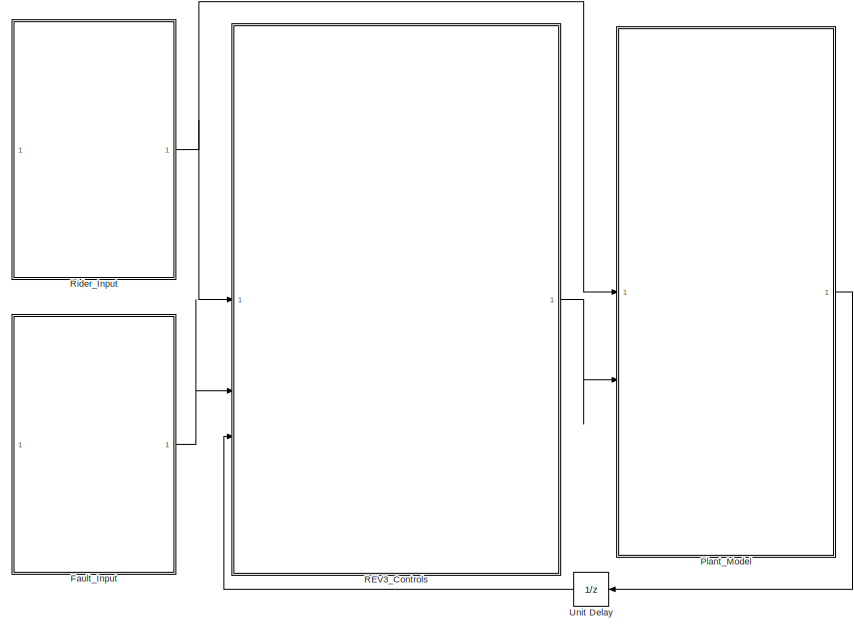
[diagram: root canvas - part 1/2, right side, full height]
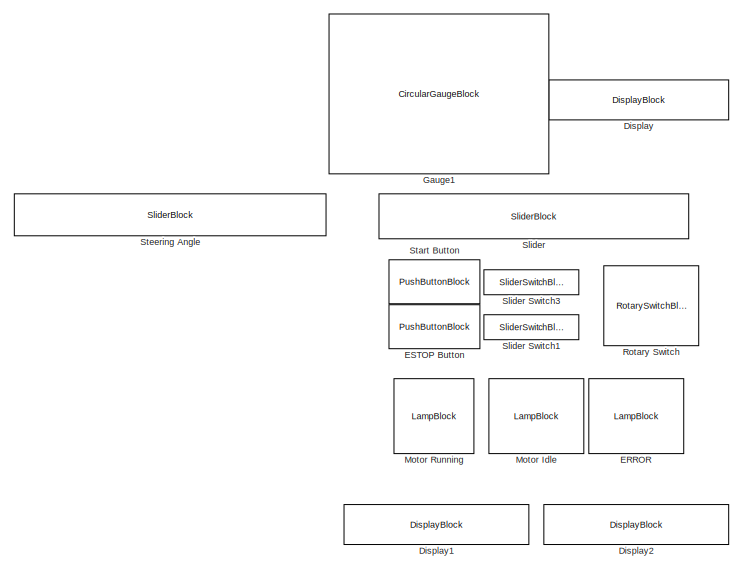
[diagram: root canvas - part 2/2, left side, full height]
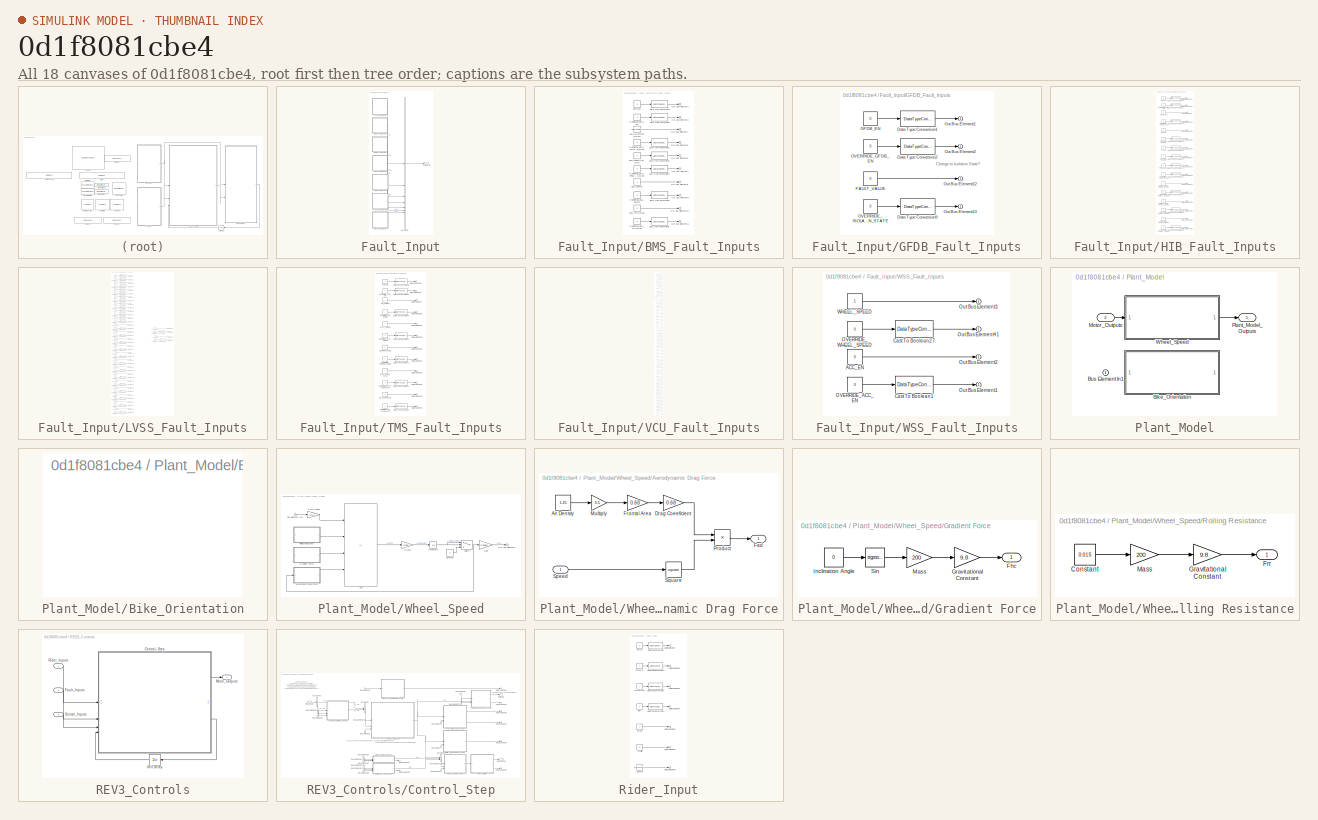
[diagram: thumbnail index - all 18 canvases of the model, root first then tree order]
MODEL slx_0d1f8081cbe4
KIND model
CONFIG AbsTol = auto
CONFIG EnableMultiTasking = off
CONFIG FixedStep = 0.0001
CONFIG MaxStep = auto
CONFIG MinStep = auto
CONFIG RelTol = 1e-3
CONFIG SampleTimeConstraint = Unconstrained
CONFIG SolverName = ode8
CONFIG StartTime = 0.0
CONFIG StopTime = inf
BLOCK [DisplayBlock] Display
  GridColor = [0.502, 0.502, 0.502]
  LabelPosition = Hide
  Transparency = 1
BLOCK [DisplayBlock] Display1
  AttributesFormatString = MC_State
  GridColor = [0.502, 0.502, 0.502]
  LabelPosition = Hide
  Transparency = 1
BLOCK [DisplayBlock] Display2
  AttributesFormatString = uC_State
  GridColor = [0.502, 0.502, 0.502]
  LabelPosition = Hide
  Transparency = 1
BLOCK [LampBlock] ERROR
  DefaultColor = [192.0, 192.0, 192.0]
  LabelPosition = Hide
BLOCK [PushButtonBlock] ESTOP Button
  ButtonText = ESTOP
  ButtonType = Latch
  Icon = Circle
  IconAlignment = Right
  IconColor = On
  IconOffColor = [0.74901960784313726, 0.74901960784313726, 0.74901960784313726]
  IconOnColor = [0.91764705882352937, 0.19607843137254902, 0.0392156862745098]
  OffValue = 0.000000
BLOCK [SubSystem] Fault_Input
BLOCK [SubSystem] Fault_Input/BMS_Fault_Inputs
BLOCK [Constant] Fault_Input/BMS_Fault_Inputs/BMS_CONTACTOR_STATE
  OutDataTypeStr = Enum: BMS_Contactor_Command
  Value = BMS_Contactor_Command.Open_Contactor
BLOCK [Constant] Fault_Input/BMS_Fault_Inputs/BMS_EN
  Value = 0
BLOCK [Constant] Fault_Input/BMS_Fault_Inputs/BMS_PREVIOUS_STATE
  Value = 0
BLOCK [Constant] Fault_Input/BMS_Fault_Inputs/CELL_TEMPS
  Value = 0
BLOCK [Constant] Fault_Input/BMS_Fault_Inputs/CELL_VOLTAGES
  Value = 0
BLOCK [DataTypeConversion] Fault_Input/BMS_Fault_Inputs/Data Type Conversion1
  OutDataTypeStr = boolean
  RndMeth = Floor
  SaturateOnIntegerOverflow = off
BLOCK [DataTypeConversion] Fault_Input/BMS_Fault_Inputs/Data Type Conversion2
  OutDataTypeStr = boolean
  RndMeth = Floor
  SaturateOnIntegerOverflow = off
BLOCK [DataTypeConversion] Fault_Input/BMS_Fault_Inputs/Data Type Conversion4
  OutDataTypeStr = boolean
  RndMeth = Floor
  SaturateOnIntegerOverflow = off
BLOCK [DataTypeConversion] Fault_Input/BMS_Fault_Inputs/Data Type Conversion5
  OutDataTypeStr = boolean
  RndMeth = Floor
  SaturateOnIntegerOverflow = off
BLOCK [DataTypeConversion] Fault_Input/BMS_Fault_Inputs/Data Type Conversion6
  OutDataTypeStr = boolean
  RndMeth = Floor
  SaturateOnIntegerOverflow = off
BLOCK [DataTypeConversion] Fault_Input/BMS_Fault_Inputs/Data Type Conversion7
  OutDataTypeStr = boolean
  RndMeth = Floor
  SaturateOnIntegerOverflow = off
BLOCK [DataTypeConversion] Fault_Input/BMS_Fault_Inputs/Data Type Conversion8
  OutDataTypeStr = boolean
  RndMeth = Floor
  SaturateOnIntegerOverflow = off
BLOCK [Constant] Fault_Input/BMS_Fault_Inputs/OVERRIDE_BMS_CONTACTOR_STATE
  Value = 0
BLOCK [Constant] Fault_Input/BMS_Fault_Inputs/OVERRIDE_BMS_EN
  Value = 0
BLOCK [Constant] Fault_Input/BMS_Fault_Inputs/OVERRIDE_BMS_PREVIOUS_STATE
  Value = 0
BLOCK [Constant] Fault_Input/BMS_Fault_Inputs/OVERRIDE_CELL_TEMPS
  Value = 0
BLOCK [Constant] Fault_Input/BMS_Fault_Inputs/OVERRIDE_CELL_VOLTAGES
  Value = 0
BLOCK [Outport] Fault_Input/BMS_Fault_Inputs/Out Bus Element1
BLOCK [Outport] Fault_Input/BMS_Fault_Inputs/Out Bus Element10
BLOCK [Outport] Fault_Input/BMS_Fault_Inputs/Out Bus Element11
BLOCK [Outport] Fault_Input/BMS_Fault_Inputs/Out Bus Element2
BLOCK [Outport] Fault_Input/BMS_Fault_Inputs/Out Bus Element4
BLOCK [Outport] Fault_Input/BMS_Fault_Inputs/Out Bus Element5
BLOCK [Outport] Fault_Input/BMS_Fault_Inputs/Out Bus Element6
BLOCK [Outport] Fault_Input/BMS_Fault_Inputs/Out Bus Element7
BLOCK [Outport] Fault_Input/BMS_Fault_Inputs/Out Bus Element8
BLOCK [Outport] Fault_Input/BMS_Fault_Inputs/Out Bus Element9
BLOCK [BusCreator] Fault_Input/Bus Creator
  DisplayOption = bar
  InheritFromInputs = on
  Inputs = 7
BLOCK [Outport] Fault_Input/Fault_Inputs
BLOCK [SubSystem] Fault_Input/GFDB_Fault_Inputs
BLOCK [DataTypeConversion] Fault_Input/GFDB_Fault_Inputs/Data Type Conversion1
  OutDataTypeStr = boolean
  RndMeth = Floor
  SaturateOnIntegerOverflow = off
BLOCK [DataTypeConversion] Fault_Input/GFDB_Fault_Inputs/Data Type Conversion2
  OutDataTypeStr = boolean
  RndMeth = Floor
  SaturateOnIntegerOverflow = off
BLOCK [DataTypeConversion] Fault_Input/GFDB_Fault_Inputs/Data Type Conversion9
  OutDataTypeStr = boolean
  RndMeth = Floor
  SaturateOnIntegerOverflow = off
BLOCK [Constant] Fault_Input/GFDB_Fault_Inputs/FAULT_VALUE
  Value = 0
BLOCK [Constant] Fault_Input/GFDB_Fault_Inputs/GFDB_EN
  Value = 0
BLOCK [Constant] Fault_Input/GFDB_Fault_Inputs/OVERRIDE_GFDB_EN
  Value = 0
BLOCK [Constant] Fault_Input/GFDB_Fault_Inputs/OVERRIDE_ISOLATION_STATE
  Value = 0
BLOCK [Outport] Fault_Input/GFDB_Fault_Inputs/Out Bus Element1
BLOCK [Outport] Fault_Input/GFDB_Fault_Inputs/Out Bus Element12
BLOCK [Outport] Fault_Input/GFDB_Fault_Inputs/Out Bus Element13
BLOCK [Outport] Fault_Input/GFDB_Fault_Inputs/Out Bus Element2
BLOCK [SubSystem] Fault_Input/HIB_Fault_Inputs
BLOCK [Constant] Fault_Input/HIB_Fault_Inputs/ACCEPTABLE_MARGIN_ERROR_COUNT
  Value = 0
BLOCK [Constant] Fault_Input/HIB_Fault_Inputs/BRAKE
  Value = 0
BLOCK [Constant] Fault_Input/HIB_Fault_Inputs/COMPARISON_ERROR_COUNT
  Value = 0
BLOCK [DataTypeConversion] Fault_Input/HIB_Fault_Inputs/Data Type Conversion1
  OutDataTypeStr = boolean
  RndMeth = Floor
  SaturateOnIntegerOverflow = off
BLOCK [DataTypeConversion] Fault_Input/HIB_Fault_Inputs/Data Type Conversion10
  OutDataTypeStr = boolean
  RndMeth = Floor
  SaturateOnIntegerOverflow = off
BLOCK [DataTypeConversion] Fault_Input/HIB_Fault_Inputs/Data Type Conversion11
  OutDataTypeStr = boolean
  RndMeth = Floor
  SaturateOnIntegerOverflow = off
BLOCK [DataTypeConversion] Fault_Input/HIB_Fault_Inputs/Data Type Conversion2
  OutDataTypeStr = boolean
  RndMeth = Floor
  SaturateOnIntegerOverflow = off
BLOCK [DataTypeConversion] Fault_Input/HIB_Fault_Inputs/Data Type Conversion3
  OutDataTypeStr = boolean
  RndMeth = Floor
  SaturateOnIntegerOverflow = off
BLOCK [DataTypeConversion] Fault_Input/HIB_Fault_Inputs/Data Type Conversion4
  OutDataTypeStr = boolean
  RndMeth = Floor
  SaturateOnIntegerOverflow = off
BLOCK [DataTypeConversion] Fault_Input/HIB_Fault_Inputs/Data Type Conversion5
  OutDataTypeStr = boolean
  RndMeth = Floor
  SaturateOnIntegerOverflow = off
BLOCK [DataTypeConversion] Fault_Input/HIB_Fault_Inputs/Data Type Conversion6
  OutDataTypeStr = boolean
  RndMeth = Floor
  SaturateOnIntegerOverflow = off
BLOCK [DataTypeConversion] Fault_Input/HIB_Fault_Inputs/Data Type Conversion7
  OutDataTypeStr = boolean
  RndMeth = Floor
  SaturateOnIntegerOverflow = off
BLOCK [DataTypeConversion] Fault_Input/HIB_Fault_Inputs/Data Type Conversion8
  OutDataTypeStr = boolean
  RndMeth = Floor
  SaturateOnIntegerOverflow = off
BLOCK [DataTypeConversion] Fault_Input/HIB_Fault_Inputs/Data Type Conversion9
  OutDataTypeStr = boolean
  RndMeth = Floor
  SaturateOnIntegerOverflow = off
BLOCK [Constant] Fault_Input/HIB_Fault_Inputs/FORWARD_EN
  Value = 0
BLOCK [Constant] Fault_Input/HIB_Fault_Inputs/HIB_EN
  Value = 0
BLOCK [Constant] Fault_Input/HIB_Fault_Inputs/OVERRIDE_ACCEPTABLE_MARGIN_ERROR_COUNT
  Value = 0
BLOCK [Constant] Fault_Input/HIB_Fault_Inputs/OVERRIDE_BRAKE
  Value = 0
BLOCK [Constant] Fault_Input/HIB_Fault_Inputs/OVERRIDE_COMPARISON_ERROR_COUNT
  Value = 0
BLOCK [Constant] Fault_Input/HIB_Fault_Inputs/OVERRIDE_FORWARD_EN
  Value = 0
BLOCK [Constant] Fault_Input/HIB_Fault_Inputs/OVERRIDE_HIB_EN
  Value = 0
BLOCK [Constant] Fault_Input/HIB_Fault_Inputs/OVERRIDE_PRECISION_MARGIN_ERROR_COUNT
  Value = 0
BLOCK [Constant] Fault_Input/HIB_Fault_Inputs/OVERRIDE_START
  Value = 0
BLOCK [Constant] Fault_Input/HIB_Fault_Inputs/OVERRIDE_THROTTLE
  Value = 0
BLOCK [Outport] Fault_Input/HIB_Fault_Inputs/Out Bus Element
BLOCK [Outport] Fault_Input/HIB_Fault_Inputs/Out Bus Element1
BLOCK [Outport] Fault_Input/HIB_Fault_Inputs/Out Bus Element10
BLOCK [Outport] Fault_Input/HIB_Fault_Inputs/Out Bus Element11
BLOCK [Outport] Fault_Input/HIB_Fault_Inputs/Out Bus Element12
BLOCK [Outport] Fault_Input/HIB_Fault_Inputs/Out Bus Element13
BLOCK [Outport] Fault_Input/HIB_Fault_Inputs/Out Bus Element14
BLOCK [Outport] Fault_Input/HIB_Fault_Inputs/Out Bus Element15
BLOCK [Outport] Fault_Input/HIB_Fault_Inputs/Out Bus Element2
BLOCK [Outport] Fault_Input/HIB_Fault_Inputs/Out Bus Element3
BLOCK [Outport] Fault_Input/HIB_Fault_Inputs/Out Bus Element4
BLOCK [Outport] Fault_Input/HIB_Fault_Inputs/Out Bus Element5
BLOCK [Outport] Fault_Input/HIB_Fault_Inputs/Out Bus Element6
BLOCK [Outport] Fault_Input/HIB_Fault_Inputs/Out Bus Element7
BLOCK [Outport] Fault_Input/HIB_Fault_Inputs/Out Bus Element8
BLOCK [Outport] Fault_Input/HIB_Fault_Inputs/Out Bus Element9
BLOCK [Constant] Fault_Input/HIB_Fault_Inputs/PRECISION_MARGIN_ERROR_COUNT
  Value = 0
BLOCK [Constant] Fault_Input/HIB_Fault_Inputs/START
  Value = 0
BLOCK [Constant] Fault_Input/HIB_Fault_Inputs/THROTTLE
  Value = 0
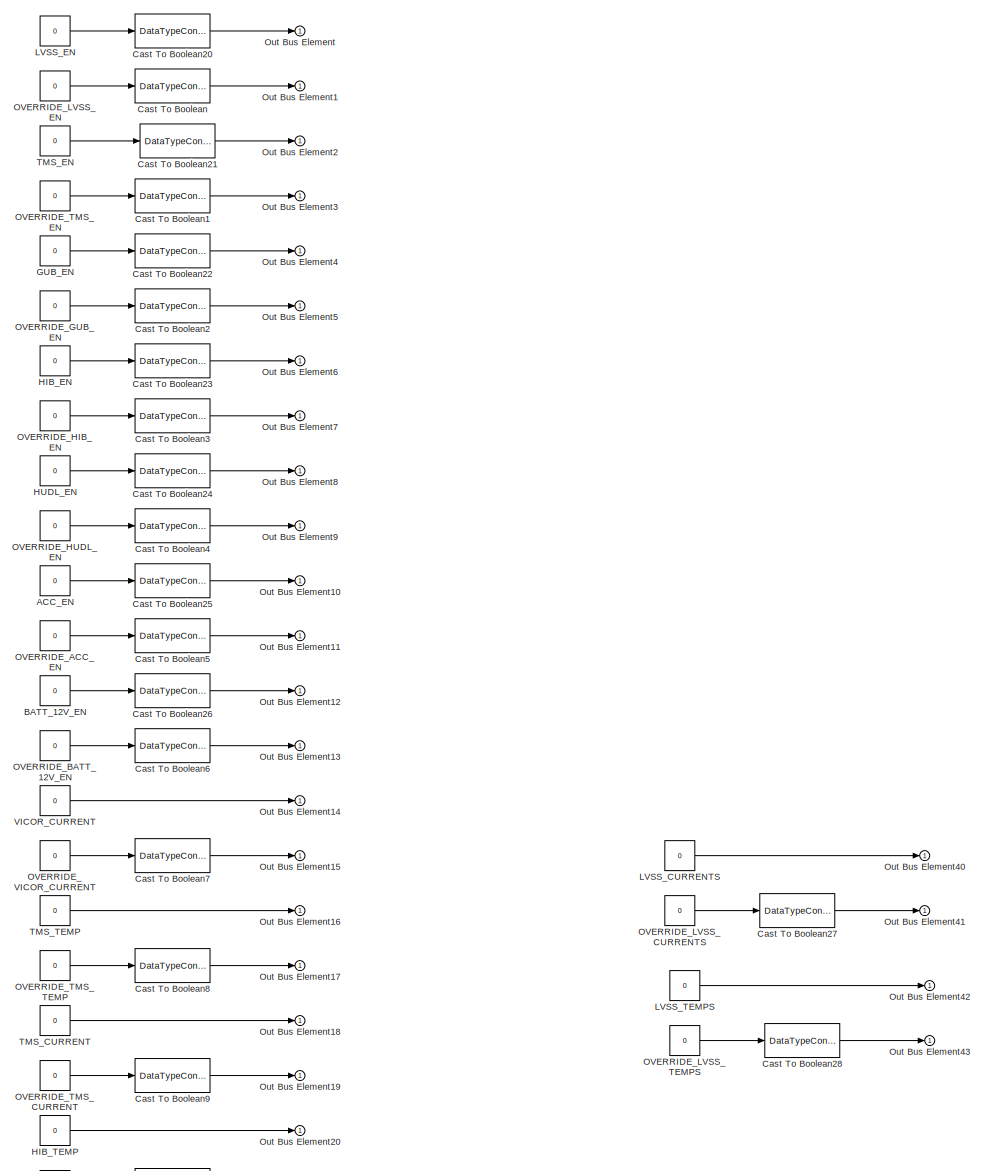
[diagram: Fault_Input/LVSS_Fault_Inputs - part 1/2, full width, top band]
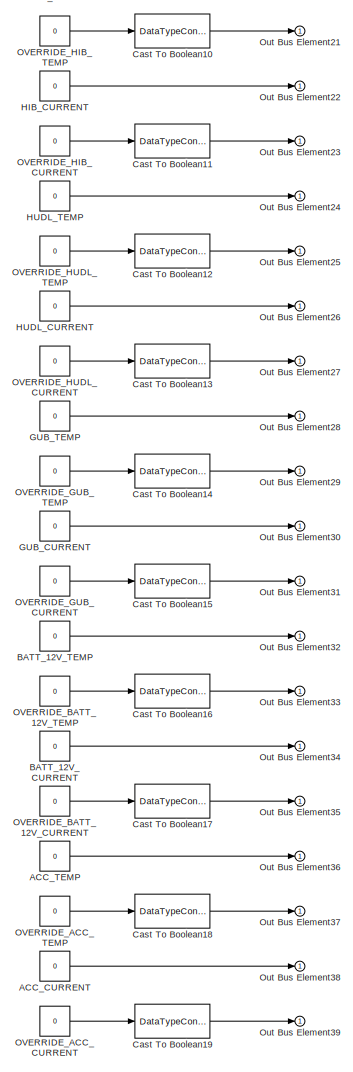
[diagram: Fault_Input/LVSS_Fault_Inputs - part 2/2, bottom left region]
BLOCK [SubSystem] Fault_Input/LVSS_Fault_Inputs
BLOCK [Constant] Fault_Input/LVSS_Fault_Inputs/ACC_CURRENT
  Value = 0
BLOCK [Constant] Fault_Input/LVSS_Fault_Inputs/ACC_EN
  Value = 0
BLOCK [Constant] Fault_Input/LVSS_Fault_Inputs/ACC_TEMP
  Value = 0
BLOCK [Constant] Fault_Input/LVSS_Fault_Inputs/BATT_12V_CURRENT
  Value = 0
BLOCK [Constant] Fault_Input/LVSS_Fault_Inputs/BATT_12V_EN
  Value = 0
BLOCK [Constant] Fault_Input/LVSS_Fault_Inputs/BATT_12V_TEMP
  Value = 0
BLOCK [DataTypeConversion] Fault_Input/LVSS_Fault_Inputs/Cast To Boolean
  OutDataTypeStr = boolean
  RndMeth = Floor
  SaturateOnIntegerOverflow = off
BLOCK [DataTypeConversion] Fault_Input/LVSS_Fault_Inputs/Cast To Boolean1
  OutDataTypeStr = boolean
  RndMeth = Floor
  SaturateOnIntegerOverflow = off
BLOCK [DataTypeConversion] Fault_Input/LVSS_Fault_Inputs/Cast To Boolean10
  OutDataTypeStr = boolean
  RndMeth = Floor
  SaturateOnIntegerOverflow = off
BLOCK [DataTypeConversion] Fault_Input/LVSS_Fault_Inputs/Cast To Boolean11
  OutDataTypeStr = boolean
  RndMeth = Floor
  SaturateOnIntegerOverflow = off
BLOCK [DataTypeConversion] Fault_Input/LVSS_Fault_Inputs/Cast To Boolean12
  OutDataTypeStr = boolean
  RndMeth = Floor
  SaturateOnIntegerOverflow = off
BLOCK [DataTypeConversion] Fault_Input/LVSS_Fault_Inputs/Cast To Boolean13
  OutDataTypeStr = boolean
  RndMeth = Floor
  SaturateOnIntegerOverflow = off
BLOCK [DataTypeConversion] Fault_Input/LVSS_Fault_Inputs/Cast To Boolean14
  OutDataTypeStr = boolean
  RndMeth = Floor
  SaturateOnIntegerOverflow = off
BLOCK [DataTypeConversion] Fault_Input/LVSS_Fault_Inputs/Cast To Boolean15
  OutDataTypeStr = boolean
  RndMeth = Floor
  SaturateOnIntegerOverflow = off
BLOCK [DataTypeConversion] Fault_Input/LVSS_Fault_Inputs/Cast To Boolean16
  OutDataTypeStr = boolean
  RndMeth = Floor
  SaturateOnIntegerOverflow = off
BLOCK [DataTypeConversion] Fault_Input/LVSS_Fault_Inputs/Cast To Boolean17
  OutDataTypeStr = boolean
  RndMeth = Floor
  SaturateOnIntegerOverflow = off
BLOCK [DataTypeConversion] Fault_Input/LVSS_Fault_Inputs/Cast To Boolean18
  OutDataTypeStr = boolean
  RndMeth = Floor
  SaturateOnIntegerOverflow = off
BLOCK [DataTypeConversion] Fault_Input/LVSS_Fault_Inputs/Cast To Boolean19
  OutDataTypeStr = boolean
  RndMeth = Floor
  SaturateOnIntegerOverflow = off
BLOCK [DataTypeConversion] Fault_Input/LVSS_Fault_Inputs/Cast To Boolean2
  OutDataTypeStr = boolean
  RndMeth = Floor
  SaturateOnIntegerOverflow = off
BLOCK [DataTypeConversion] Fault_Input/LVSS_Fault_Inputs/Cast To Boolean20
  OutDataTypeStr = boolean
  RndMeth = Floor
  SaturateOnIntegerOverflow = off
BLOCK [DataTypeConversion] Fault_Input/LVSS_Fault_Inputs/Cast To Boolean21
  OutDataTypeStr = boolean
  RndMeth = Floor
  SaturateOnIntegerOverflow = off
BLOCK [DataTypeConversion] Fault_Input/LVSS_Fault_Inputs/Cast To Boolean22
  OutDataTypeStr = boolean
  RndMeth = Floor
  SaturateOnIntegerOverflow = off
BLOCK [DataTypeConversion] Fault_Input/LVSS_Fault_Inputs/Cast To Boolean23
  OutDataTypeStr = boolean
  RndMeth = Floor
  SaturateOnIntegerOverflow = off
BLOCK [DataTypeConversion] Fault_Input/LVSS_Fault_Inputs/Cast To Boolean24
  OutDataTypeStr = boolean
  RndMeth = Floor
  SaturateOnIntegerOverflow = off
BLOCK [DataTypeConversion] Fault_Input/LVSS_Fault_Inputs/Cast To Boolean25
  OutDataTypeStr = boolean
  RndMeth = Floor
  SaturateOnIntegerOverflow = off
BLOCK [DataTypeConversion] Fault_Input/LVSS_Fault_Inputs/Cast To Boolean26
  OutDataTypeStr = boolean
  RndMeth = Floor
  SaturateOnIntegerOverflow = off
BLOCK [DataTypeConversion] Fault_Input/LVSS_Fault_Inputs/Cast To Boolean27
  OutDataTypeStr = boolean
  RndMeth = Floor
  SaturateOnIntegerOverflow = off
BLOCK [DataTypeConversion] Fault_Input/LVSS_Fault_Inputs/Cast To Boolean28
  OutDataTypeStr = boolean
  RndMeth = Floor
  SaturateOnIntegerOverflow = off
BLOCK [DataTypeConversion] Fault_Input/LVSS_Fault_Inputs/Cast To Boolean3
  OutDataTypeStr = boolean
  RndMeth = Floor
  SaturateOnIntegerOverflow = off
BLOCK [DataTypeConversion] Fault_Input/LVSS_Fault_Inputs/Cast To Boolean4
  OutDataTypeStr = boolean
  RndMeth = Floor
  SaturateOnIntegerOverflow = off
BLOCK [DataTypeConversion] Fault_Input/LVSS_Fault_Inputs/Cast To Boolean5
  OutDataTypeStr = boolean
  RndMeth = Floor
  SaturateOnIntegerOverflow = off
BLOCK [DataTypeConversion] Fault_Input/LVSS_Fault_Inputs/Cast To Boolean6
  OutDataTypeStr = boolean
  RndMeth = Floor
  SaturateOnIntegerOverflow = off
BLOCK [DataTypeConversion] Fault_Input/LVSS_Fault_Inputs/Cast To Boolean7
  OutDataTypeStr = boolean
  RndMeth = Floor
  SaturateOnIntegerOverflow = off
BLOCK [DataTypeConversion] Fault_Input/LVSS_Fault_Inputs/Cast To Boolean8
  OutDataTypeStr = boolean
  RndMeth = Floor
  SaturateOnIntegerOverflow = off
BLOCK [DataTypeConversion] Fault_Input/LVSS_Fault_Inputs/Cast To Boolean9
  OutDataTypeStr = boolean
  RndMeth = Floor
  SaturateOnIntegerOverflow = off
BLOCK [Constant] Fault_Input/LVSS_Fault_Inputs/GUB_CURRENT
  Value = 0
BLOCK [Constant] Fault_Input/LVSS_Fault_Inputs/GUB_EN
  Value = 0
BLOCK [Constant] Fault_Input/LVSS_Fault_Inputs/GUB_TEMP
  Value = 0
BLOCK [Constant] Fault_Input/LVSS_Fault_Inputs/HIB_CURRENT
  Value = 0
BLOCK [Constant] Fault_Input/LVSS_Fault_Inputs/HIB_EN
  Value = 0
BLOCK [Constant] Fault_Input/LVSS_Fault_Inputs/HIB_TEMP
  Value = 0
BLOCK [Constant] Fault_Input/LVSS_Fault_Inputs/HUDL_CURRENT
  Value = 0
BLOCK [Constant] Fault_Input/LVSS_Fault_Inputs/HUDL_EN
  Value = 0
BLOCK [Constant] Fault_Input/LVSS_Fault_Inputs/HUDL_TEMP
  Value = 0
BLOCK [Constant] Fault_Input/LVSS_Fault_Inputs/LVSS_CURRENTS
  Value = 0
BLOCK [Constant] Fault_Input/LVSS_Fault_Inputs/LVSS_EN
  Value = 0
BLOCK [Constant] Fault_Input/LVSS_Fault_Inputs/LVSS_TEMPS
  Value = 0
BLOCK [Constant] Fault_Input/LVSS_Fault_Inputs/OVERRIDE_ACC_CURRENT
  Value = 0
BLOCK [Constant] Fault_Input/LVSS_Fault_Inputs/OVERRIDE_ACC_EN
  Value = 0
BLOCK [Constant] Fault_Input/LVSS_Fault_Inputs/OVERRIDE_ACC_TEMP
  Value = 0
BLOCK [Constant] Fault_Input/LVSS_Fault_Inputs/OVERRIDE_BATT_12V_CURRENT
  Value = 0
BLOCK [Constant] Fault_Input/LVSS_Fault_Inputs/OVERRIDE_BATT_12V_EN
  Value = 0
BLOCK [Constant] Fault_Input/LVSS_Fault_Inputs/OVERRIDE_BATT_12V_TEMP
  Value = 0
BLOCK [Constant] Fault_Input/LVSS_Fault_Inputs/OVERRIDE_GUB_CURRENT
  Value = 0
BLOCK [Constant] Fault_Input/LVSS_Fault_Inputs/OVERRIDE_GUB_EN
  Value = 0
BLOCK [Constant] Fault_Input/LVSS_Fault_Inputs/OVERRIDE_GUB_TEMP
  Value = 0
BLOCK [Constant] Fault_Input/LVSS_Fault_Inputs/OVERRIDE_HIB_CURRENT
  Value = 0
BLOCK [Constant] Fault_Input/LVSS_Fault_Inputs/OVERRIDE_HIB_EN
  Value = 0
BLOCK [Constant] Fault_Input/LVSS_Fault_Inputs/OVERRIDE_HIB_TEMP
  Value = 0
BLOCK [Constant] Fault_Input/LVSS_Fault_Inputs/OVERRIDE_HUDL_CURRENT
  Value = 0
BLOCK [Constant] Fault_Input/LVSS_Fault_Inputs/OVERRIDE_HUDL_EN
  Value = 0
BLOCK [Constant] Fault_Input/LVSS_Fault_Inputs/OVERRIDE_HUDL_TEMP
  Value = 0
BLOCK [Constant] Fault_Input/LVSS_Fault_Inputs/OVERRIDE_LVSS_CURRENTS
  Value = 0
BLOCK [Constant] Fault_Input/LVSS_Fault_Inputs/OVERRIDE_LVSS_EN
  Value = 0
BLOCK [Constant] Fault_Input/LVSS_Fault_Inputs/OVERRIDE_LVSS_TEMPS
  Value = 0
BLOCK [Constant] Fault_Input/LVSS_Fault_Inputs/OVERRIDE_TMS_CURRENT
  Value = 0
BLOCK [Constant] Fault_Input/LVSS_Fault_Inputs/OVERRIDE_TMS_EN
  Value = 0
BLOCK [Constant] Fault_Input/LVSS_Fault_Inputs/OVERRIDE_TMS_TEMP
  Value = 0
BLOCK [Constant] Fault_Input/LVSS_Fault_Inputs/OVERRIDE_VICOR_CURRENT
  Value = 0
BLOCK [Outport] Fault_Input/LVSS_Fault_Inputs/Out Bus Element
BLOCK [Outport] Fault_Input/LVSS_Fault_Inputs/Out Bus Element1
BLOCK [Outport] Fault_Input/LVSS_Fault_Inputs/Out Bus Element10
BLOCK [Outport] Fault_Input/LVSS_Fault_Inputs/Out Bus Element11
BLOCK [Outport] Fault_Input/LVSS_Fault_Inputs/Out Bus Element12
BLOCK [Outport] Fault_Input/LVSS_Fault_Inputs/Out Bus Element13
BLOCK [Outport] Fault_Input/LVSS_Fault_Inputs/Out Bus Element14
BLOCK [Outport] Fault_Input/LVSS_Fault_Inputs/Out Bus Element15
BLOCK [Outport] Fault_Input/LVSS_Fault_Inputs/Out Bus Element16
BLOCK [Outport] Fault_Input/LVSS_Fault_Inputs/Out Bus Element17
BLOCK [Outport] Fault_Input/LVSS_Fault_Inputs/Out Bus Element18
BLOCK [Outport] Fault_Input/LVSS_Fault_Inputs/Out Bus Element19
BLOCK [Outport] Fault_Input/LVSS_Fault_Inputs/Out Bus Element2
BLOCK [Outport] Fault_Input/LVSS_Fault_Inputs/Out Bus Element20
BLOCK [Outport] Fault_Input/LVSS_Fault_Inputs/Out Bus Element21
BLOCK [Outport] Fault_Input/LVSS_Fault_Inputs/Out Bus Element22
BLOCK [Outport] Fault_Input/LVSS_Fault_Inputs/Out Bus Element23
BLOCK [Outport] Fault_Input/LVSS_Fault_Inputs/Out Bus Element24
BLOCK [Outport] Fault_Input/LVSS_Fault_Inputs/Out Bus Element25
BLOCK [Outport] Fault_Input/LVSS_Fault_Inputs/Out Bus Element26
BLOCK [Outport] Fault_Input/LVSS_Fault_Inputs/Out Bus Element27
BLOCK [Outport] Fault_Input/LVSS_Fault_Inputs/Out Bus Element28
BLOCK [Outport] Fault_Input/LVSS_Fault_Inputs/Out Bus Element29
BLOCK [Outport] Fault_Input/LVSS_Fault_Inputs/Out Bus Element3
BLOCK [Outport] Fault_Input/LVSS_Fault_Inputs/Out Bus Element30
BLOCK [Outport] Fault_Input/LVSS_Fault_Inputs/Out Bus Element31
BLOCK [Outport] Fault_Input/LVSS_Fault_Inputs/Out Bus Element32
BLOCK [Outport] Fault_Input/LVSS_Fault_Inputs/Out Bus Element33
BLOCK [Outport] Fault_Input/LVSS_Fault_Inputs/Out Bus Element34
BLOCK [Outport] Fault_Input/LVSS_Fault_Inputs/Out Bus Element35
BLOCK [Outport] Fault_Input/LVSS_Fault_Inputs/Out Bus Element36
BLOCK [Outport] Fault_Input/LVSS_Fault_Inputs/Out Bus Element37
BLOCK [Outport] Fault_Input/LVSS_Fault_Inputs/Out Bus Element38
BLOCK [Outport] Fault_Input/LVSS_Fault_Inputs/Out Bus Element39
BLOCK [Outport] Fault_Input/LVSS_Fault_Inputs/Out Bus Element4
BLOCK [Outport] Fault_Input/LVSS_Fault_Inputs/Out Bus Element40
BLOCK [Outport] Fault_Input/LVSS_Fault_Inputs/Out Bus Element41
BLOCK [Outport] Fault_Input/LVSS_Fault_Inputs/Out Bus Element42
BLOCK [Outport] Fault_Input/LVSS_Fault_Inputs/Out Bus Element43
BLOCK [Outport] Fault_Input/LVSS_Fault_Inputs/Out Bus Element5
BLOCK [Outport] Fault_Input/LVSS_Fault_Inputs/Out Bus Element6
BLOCK [Outport] Fault_Input/LVSS_Fault_Inputs/Out Bus Element7
BLOCK [Outport] Fault_Input/LVSS_Fault_Inputs/Out Bus Element8
BLOCK [Outport] Fault_Input/LVSS_Fault_Inputs/Out Bus Element9
BLOCK [Constant] Fault_Input/LVSS_Fault_Inputs/TMS_CURRENT
  Value = 0
BLOCK [Constant] Fault_Input/LVSS_Fault_Inputs/TMS_EN
  Value = 0
BLOCK [Constant] Fault_Input/LVSS_Fault_Inputs/TMS_TEMP
  Value = 0
BLOCK [Constant] Fault_Input/LVSS_Fault_Inputs/VICOR_CURRENT
  Value = 0
BLOCK [SubSystem] Fault_Input/TMS_Fault_Inputs
BLOCK [Constant] Fault_Input/TMS_Fault_Inputs/BATT_FLOW_RATE
  Value = 0
BLOCK [Constant] Fault_Input/TMS_Fault_Inputs/BATT_SPEED
  Value = 0
BLOCK [DataTypeConversion] Fault_Input/TMS_Fault_Inputs/Data Type Conversion1
  OutDataTypeStr = boolean
  RndMeth = Floor
  SaturateOnIntegerOverflow = off
BLOCK [DataTypeConversion] Fault_Input/TMS_Fault_Inputs/Data Type Conversion2
  OutDataTypeStr = boolean
  RndMeth = Floor
  SaturateOnIntegerOverflow = off
BLOCK [DataTypeConversion] Fault_Input/TMS_Fault_Inputs/Data Type Conversion3
  OutDataTypeStr = boolean
  RndMeth = Floor
  SaturateOnIntegerOverflow = off
BLOCK [DataTypeConversion] Fault_Input/TMS_Fault_Inputs/Data Type Conversion4
  OutDataTypeStr = boolean
  RndMeth = Floor
  SaturateOnIntegerOverflow = off
BLOCK [DataTypeConversion] Fault_Input/TMS_Fault_Inputs/Data Type Conversion5
  OutDataTypeStr = boolean
  RndMeth = Floor
  SaturateOnIntegerOverflow = off
BLOCK [DataTypeConversion] Fault_Input/TMS_Fault_Inputs/Data Type Conversion6
  OutDataTypeStr = boolean
  RndMeth = Floor
  SaturateOnIntegerOverflow = off
BLOCK [DataTypeConversion] Fault_Input/TMS_Fault_Inputs/Data Type Conversion9
  OutDataTypeStr = boolean
  RndMeth = Floor
  SaturateOnIntegerOverflow = off
BLOCK [Constant] Fault_Input/TMS_Fault_Inputs/MC_FLOW_RATE
  Value = 0
BLOCK [Constant] Fault_Input/TMS_Fault_Inputs/MC_SPEED
  Value = 0
BLOCK [Constant] Fault_Input/TMS_Fault_Inputs/OVERRIDE_BATT_FLOW_RATE
  Value = 0
BLOCK [Constant] Fault_Input/TMS_Fault_Inputs/OVERRIDE_BATT_SPEED
  Value = 0
BLOCK [Constant] Fault_Input/TMS_Fault_Inputs/OVERRIDE_MC_FLOW_RATE
  Value = 0
BLOCK [Constant] Fault_Input/TMS_Fault_Inputs/OVERRIDE_MC_SPEED
  Value = 0
BLOCK [Constant] Fault_Input/TMS_Fault_Inputs/OVERRIDE_TEMPERATURES
  Value = 0
BLOCK [Constant] Fault_Input/TMS_Fault_Inputs/OVERRIDE_TMS_EN
  Value = 0
BLOCK [Outport] Fault_Input/TMS_Fault_Inputs/Out Bus Element
BLOCK [Outport] Fault_Input/TMS_Fault_Inputs/Out Bus Element1
BLOCK [Outport] Fault_Input/TMS_Fault_Inputs/Out Bus Element10
BLOCK [Outport] Fault_Input/TMS_Fault_Inputs/Out Bus Element11
BLOCK [Outport] Fault_Input/TMS_Fault_Inputs/Out Bus Element2
BLOCK [Outport] Fault_Input/TMS_Fault_Inputs/Out Bus Element3
BLOCK [Outport] Fault_Input/TMS_Fault_Inputs/Out Bus Element4
BLOCK [Outport] Fault_Input/TMS_Fault_Inputs/Out Bus Element5
BLOCK [Outport] Fault_Input/TMS_Fault_Inputs/Out Bus Element6
BLOCK [Outport] Fault_Input/TMS_Fault_Inputs/Out Bus Element7
BLOCK [Outport] Fault_Input/TMS_Fault_Inputs/Out Bus Element8
BLOCK [Outport] Fault_Input/TMS_Fault_Inputs/Out Bus Element9
BLOCK [Constant] Fault_Input/TMS_Fault_Inputs/TEMPERATURES
  Value = 0
BLOCK [Constant] Fault_Input/TMS_Fault_Inputs/TMS_EN
  Value = 0
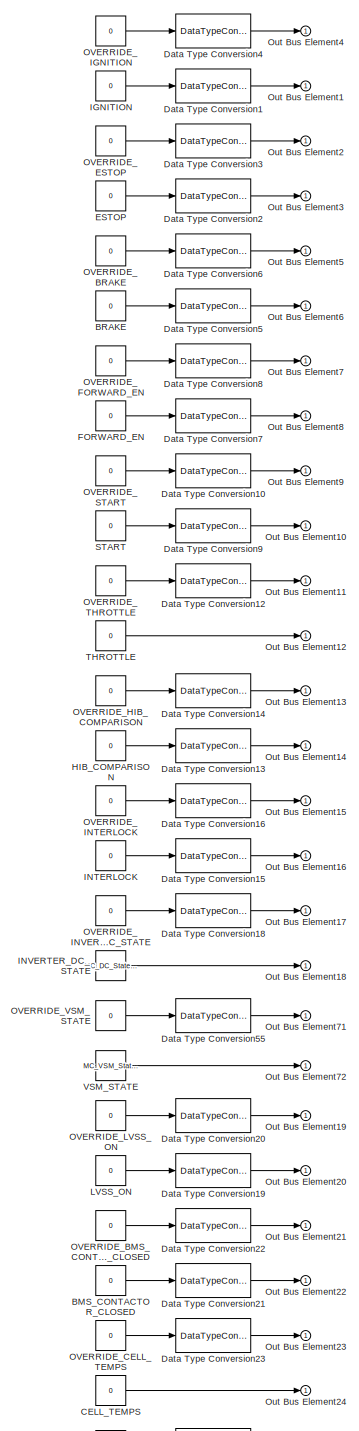
[diagram: Fault_Input/VCU_Fault_Inputs - part 1/4, full width, top band]
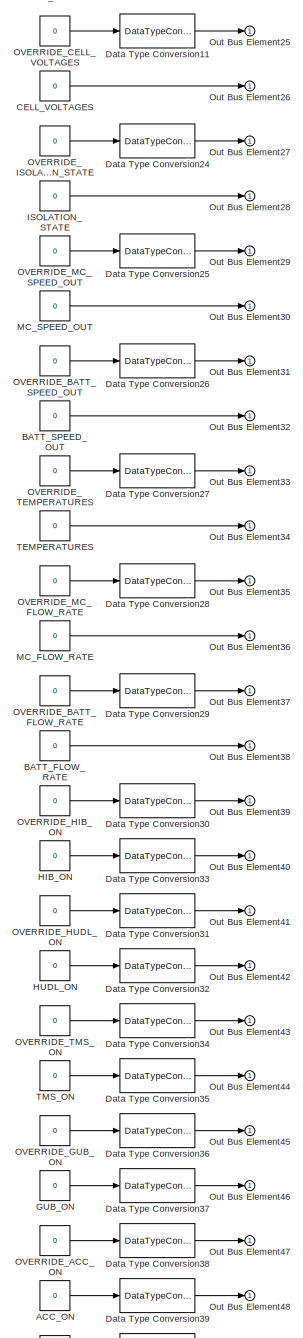
[diagram: Fault_Input/VCU_Fault_Inputs - part 2/4, full width, middle band]
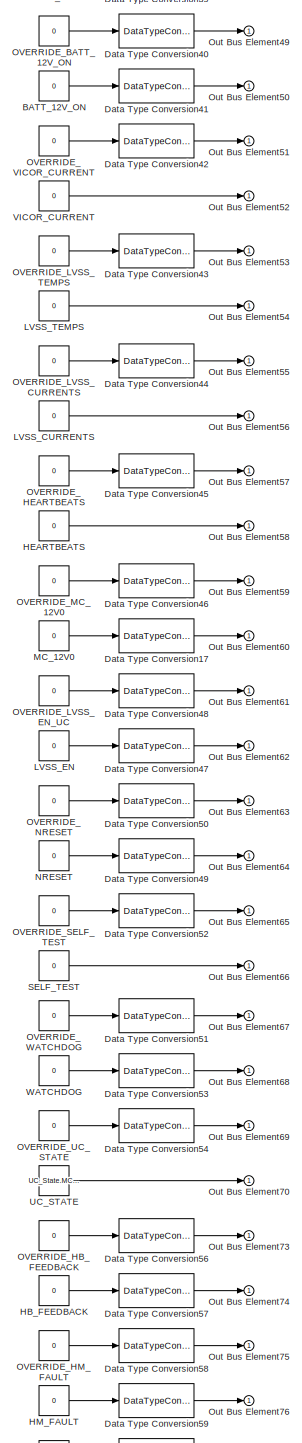
[diagram: Fault_Input/VCU_Fault_Inputs - part 3/4, full width, middle band]
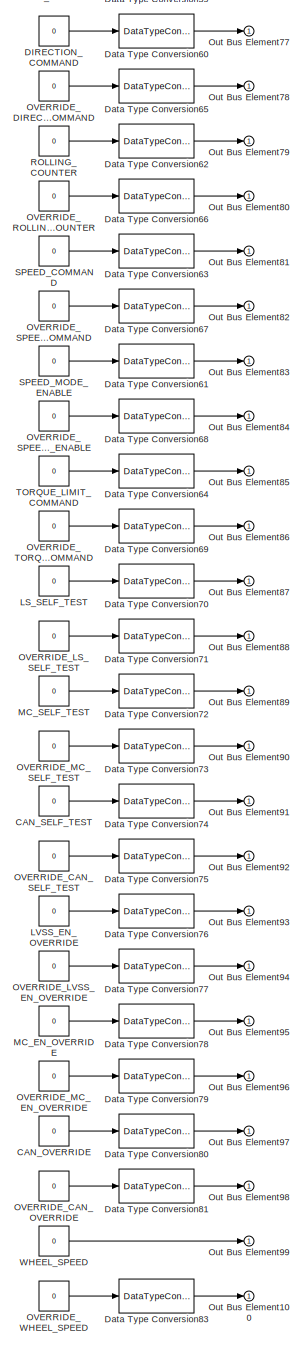
[diagram: Fault_Input/VCU_Fault_Inputs - part 4/4, full width, bottom band]
BLOCK [SubSystem] Fault_Input/VCU_Fault_Inputs
BLOCK [Constant] Fault_Input/VCU_Fault_Inputs/ACC_ON
  Value = 0
BLOCK [Constant] Fault_Input/VCU_Fault_Inputs/BATT_12V_ON
  Value = 0
BLOCK [Constant] Fault_Input/VCU_Fault_Inputs/BATT_FLOW_RATE
  Value = 0
BLOCK [Constant] Fault_Input/VCU_Fault_Inputs/BATT_SPEED_OUT
  Value = 0
BLOCK [Constant] Fault_Input/VCU_Fault_Inputs/BMS_CONTACTOR_CLOSED
  Value = 0
BLOCK [Constant] Fault_Input/VCU_Fault_Inputs/BRAKE
  Value = 0
BLOCK [Constant] Fault_Input/VCU_Fault_Inputs/CAN_OVERRIDE
  Value = 0
BLOCK [Constant] Fault_Input/VCU_Fault_Inputs/CAN_SELF_TEST
  Value = 0
BLOCK [Constant] Fault_Input/VCU_Fault_Inputs/CELL_TEMPS
  Value = 0
BLOCK [Constant] Fault_Input/VCU_Fault_Inputs/CELL_VOLTAGES
  Value = 0
BLOCK [Constant] Fault_Input/VCU_Fault_Inputs/DIRECTION_COMMAND
  Value = 0
BLOCK [DataTypeConversion] Fault_Input/VCU_Fault_Inputs/Data Type Conversion1
  OutDataTypeStr = boolean
  RndMeth = Floor
  SaturateOnIntegerOverflow = off
BLOCK [DataTypeConversion] Fault_Input/VCU_Fault_Inputs/Data Type Conversion10
  OutDataTypeStr = boolean
  RndMeth = Floor
  SaturateOnIntegerOverflow = off
BLOCK [DataTypeConversion] Fault_Input/VCU_Fault_Inputs/Data Type Conversion11
  OutDataTypeStr = boolean
  RndMeth = Floor
  SaturateOnIntegerOverflow = off
BLOCK [DataTypeConversion] Fault_Input/VCU_Fault_Inputs/Data Type Conversion12
  OutDataTypeStr = boolean
  RndMeth = Floor
  SaturateOnIntegerOverflow = off
BLOCK [DataTypeConversion] Fault_Input/VCU_Fault_Inputs/Data Type Conversion13
  OutDataTypeStr = boolean
  RndMeth = Floor
  SaturateOnIntegerOverflow = off
BLOCK [DataTypeConversion] Fault_Input/VCU_Fault_Inputs/Data Type Conversion14
  OutDataTypeStr = boolean
  RndMeth = Floor
  SaturateOnIntegerOverflow = off
BLOCK [DataTypeConversion] Fault_Input/VCU_Fault_Inputs/Data Type Conversion15
  OutDataTypeStr = boolean
  RndMeth = Floor
  SaturateOnIntegerOverflow = off
BLOCK [DataTypeConversion] Fault_Input/VCU_Fault_Inputs/Data Type Conversion16
  OutDataTypeStr = boolean
  RndMeth = Floor
  SaturateOnIntegerOverflow = off
BLOCK [DataTypeConversion] Fault_Input/VCU_Fault_Inputs/Data Type Conversion17
  OutDataTypeStr = boolean
  RndMeth = Floor
  SaturateOnIntegerOverflow = off
BLOCK [DataTypeConversion] Fault_Input/VCU_Fault_Inputs/Data Type Conversion18
  OutDataTypeStr = boolean
  RndMeth = Floor
  SaturateOnIntegerOverflow = off
BLOCK [DataTypeConversion] Fault_Input/VCU_Fault_Inputs/Data Type Conversion19
  OutDataTypeStr = boolean
  RndMeth = Floor
  SaturateOnIntegerOverflow = off
BLOCK [DataTypeConversion] Fault_Input/VCU_Fault_Inputs/Data Type Conversion2
  OutDataTypeStr = boolean
  RndMeth = Floor
  SaturateOnIntegerOverflow = off
BLOCK [DataTypeConversion] Fault_Input/VCU_Fault_Inputs/Data Type Conversion20
  OutDataTypeStr = boolean
  RndMeth = Floor
  SaturateOnIntegerOverflow = off
BLOCK [DataTypeConversion] Fault_Input/VCU_Fault_Inputs/Data Type Conversion21
  OutDataTypeStr = boolean
  RndMeth = Floor
  SaturateOnIntegerOverflow = off
BLOCK [DataTypeConversion] Fault_Input/VCU_Fault_Inputs/Data Type Conversion22
  OutDataTypeStr = boolean
  RndMeth = Floor
  SaturateOnIntegerOverflow = off
BLOCK [DataTypeConversion] Fault_Input/VCU_Fault_Inputs/Data Type Conversion23
  OutDataTypeStr = boolean
  RndMeth = Floor
  SaturateOnIntegerOverflow = off
BLOCK [DataTypeConversion] Fault_Input/VCU_Fault_Inputs/Data Type Conversion24
  OutDataTypeStr = boolean
  RndMeth = Floor
  SaturateOnIntegerOverflow = off
BLOCK [DataTypeConversion] Fault_Input/VCU_Fault_Inputs/Data Type Conversion25
  OutDataTypeStr = boolean
  RndMeth = Floor
  SaturateOnIntegerOverflow = off
BLOCK [DataTypeConversion] Fault_Input/VCU_Fault_Inputs/Data Type Conversion26
  OutDataTypeStr = boolean
  RndMeth = Floor
  SaturateOnIntegerOverflow = off
BLOCK [DataTypeConversion] Fault_Input/VCU_Fault_Inputs/Data Type Conversion27
  OutDataTypeStr = boolean
  RndMeth = Floor
  SaturateOnIntegerOverflow = off
BLOCK [DataTypeConversion] Fault_Input/VCU_Fault_Inputs/Data Type Conversion28
  OutDataTypeStr = boolean
  RndMeth = Floor
  SaturateOnIntegerOverflow = off
BLOCK [DataTypeConversion] Fault_Input/VCU_Fault_Inputs/Data Type Conversion29
  OutDataTypeStr = boolean
  RndMeth = Floor
  SaturateOnIntegerOverflow = off
BLOCK [DataTypeConversion] Fault_Input/VCU_Fault_Inputs/Data Type Conversion3
  OutDataTypeStr = boolean
  RndMeth = Floor
  SaturateOnIntegerOverflow = off
BLOCK [DataTypeConversion] Fault_Input/VCU_Fault_Inputs/Data Type Conversion30
  OutDataTypeStr = boolean
  RndMeth = Floor
  SaturateOnIntegerOverflow = off
BLOCK [DataTypeConversion] Fault_Input/VCU_Fault_Inputs/Data Type Conversion31
  OutDataTypeStr = boolean
  RndMeth = Floor
  SaturateOnIntegerOverflow = off
BLOCK [DataTypeConversion] Fault_Input/VCU_Fault_Inputs/Data Type Conversion32
  OutDataTypeStr = boolean
  RndMeth = Floor
  SaturateOnIntegerOverflow = off
BLOCK [DataTypeConversion] Fault_Input/VCU_Fault_Inputs/Data Type Conversion33
  OutDataTypeStr = boolean
  RndMeth = Floor
  SaturateOnIntegerOverflow = off
BLOCK [DataTypeConversion] Fault_Input/VCU_Fault_Inputs/Data Type Conversion34
  OutDataTypeStr = boolean
  RndMeth = Floor
  SaturateOnIntegerOverflow = off
BLOCK [DataTypeConversion] Fault_Input/VCU_Fault_Inputs/Data Type Conversion35
  OutDataTypeStr = boolean
  RndMeth = Floor
  SaturateOnIntegerOverflow = off
BLOCK [DataTypeConversion] Fault_Input/VCU_Fault_Inputs/Data Type Conversion36
  OutDataTypeStr = boolean
  RndMeth = Floor
  SaturateOnIntegerOverflow = off
BLOCK [DataTypeConversion] Fault_Input/VCU_Fault_Inputs/Data Type Conversion37
  OutDataTypeStr = boolean
  RndMeth = Floor
  SaturateOnIntegerOverflow = off
BLOCK [DataTypeConversion] Fault_Input/VCU_Fault_Inputs/Data Type Conversion38
  OutDataTypeStr = boolean
  RndMeth = Floor
  SaturateOnIntegerOverflow = off
BLOCK [DataTypeConversion] Fault_Input/VCU_Fault_Inputs/Data Type Conversion39
  OutDataTypeStr = boolean
  RndMeth = Floor
  SaturateOnIntegerOverflow = off
BLOCK [DataTypeConversion] Fault_Input/VCU_Fault_Inputs/Data Type Conversion4
  OutDataTypeStr = boolean
  RndMeth = Floor
  SaturateOnIntegerOverflow = off
BLOCK [DataTypeConversion] Fault_Input/VCU_Fault_Inputs/Data Type Conversion40
  OutDataTypeStr = boolean
  RndMeth = Floor
  SaturateOnIntegerOverflow = off
BLOCK [DataTypeConversion] Fault_Input/VCU_Fault_Inputs/Data Type Conversion41
  OutDataTypeStr = boolean
  RndMeth = Floor
  SaturateOnIntegerOverflow = off
BLOCK [DataTypeConversion] Fault_Input/VCU_Fault_Inputs/Data Type Conversion42
  OutDataTypeStr = boolean
  RndMeth = Floor
  SaturateOnIntegerOverflow = off
BLOCK [DataTypeConversion] Fault_Input/VCU_Fault_Inputs/Data Type Conversion43
  OutDataTypeStr = boolean
  RndMeth = Floor
  SaturateOnIntegerOverflow = off
BLOCK [DataTypeConversion] Fault_Input/VCU_Fault_Inputs/Data Type Conversion44
  OutDataTypeStr = boolean
  RndMeth = Floor
  SaturateOnIntegerOverflow = off
BLOCK [DataTypeConversion] Fault_Input/VCU_Fault_Inputs/Data Type Conversion45
  OutDataTypeStr = boolean
  RndMeth = Floor
  SaturateOnIntegerOverflow = off
BLOCK [DataTypeConversion] Fault_Input/VCU_Fault_Inputs/Data Type Conversion46
  OutDataTypeStr = boolean
  RndMeth = Floor
  SaturateOnIntegerOverflow = off
BLOCK [DataTypeConversion] Fault_Input/VCU_Fault_Inputs/Data Type Conversion47
  OutDataTypeStr = boolean
  RndMeth = Floor
  SaturateOnIntegerOverflow = off
BLOCK [DataTypeConversion] Fault_Input/VCU_Fault_Inputs/Data Type Conversion48
  OutDataTypeStr = boolean
  RndMeth = Floor
  SaturateOnIntegerOverflow = off
BLOCK [DataTypeConversion] Fault_Input/VCU_Fault_Inputs/Data Type Conversion49
  OutDataTypeStr = boolean
  RndMeth = Floor
  SaturateOnIntegerOverflow = off
BLOCK [DataTypeConversion] Fault_Input/VCU_Fault_Inputs/Data Type Conversion5
  OutDataTypeStr = boolean
  RndMeth = Floor
  SaturateOnIntegerOverflow = off
BLOCK [DataTypeConversion] Fault_Input/VCU_Fault_Inputs/Data Type Conversion50
  OutDataTypeStr = boolean
  RndMeth = Floor
  SaturateOnIntegerOverflow = off
BLOCK [DataTypeConversion] Fault_Input/VCU_Fault_Inputs/Data Type Conversion51
  OutDataTypeStr = boolean
  RndMeth = Floor
  SaturateOnIntegerOverflow = off
BLOCK [DataTypeConversion] Fault_Input/VCU_Fault_Inputs/Data Type Conversion52
  OutDataTypeStr = boolean
  RndMeth = Floor
  SaturateOnIntegerOverflow = off
BLOCK [DataTypeConversion] Fault_Input/VCU_Fault_Inputs/Data Type Conversion53
  OutDataTypeStr = boolean
  RndMeth = Floor
  SaturateOnIntegerOverflow = off
BLOCK [DataTypeConversion] Fault_Input/VCU_Fault_Inputs/Data Type Conversion54
  OutDataTypeStr = boolean
  RndMeth = Floor
  SaturateOnIntegerOverflow = off
BLOCK [DataTypeConversion] Fault_Input/VCU_Fault_Inputs/Data Type Conversion55
  OutDataTypeStr = boolean
  RndMeth = Floor
  SaturateOnIntegerOverflow = off
BLOCK [DataTypeConversion] Fault_Input/VCU_Fault_Inputs/Data Type Conversion56
  OutDataTypeStr = boolean
  RndMeth = Floor
  SaturateOnIntegerOverflow = off
BLOCK [DataTypeConversion] Fault_Input/VCU_Fault_Inputs/Data Type Conversion57
  OutDataTypeStr = boolean
  RndMeth = Floor
  SaturateOnIntegerOverflow = off
BLOCK [DataTypeConversion] Fault_Input/VCU_Fault_Inputs/Data Type Conversion58
  OutDataTypeStr = boolean
  RndMeth = Floor
  SaturateOnIntegerOverflow = off
BLOCK [DataTypeConversion] Fault_Input/VCU_Fault_Inputs/Data Type Conversion59
  OutDataTypeStr = boolean
  RndMeth = Floor
  SaturateOnIntegerOverflow = off
BLOCK [DataTypeConversion] Fault_Input/VCU_Fault_Inputs/Data Type Conversion6
  OutDataTypeStr = boolean
  RndMeth = Floor
  SaturateOnIntegerOverflow = off
BLOCK [DataTypeConversion] Fault_Input/VCU_Fault_Inputs/Data Type Conversion60
  RndMeth = Floor
  SaturateOnIntegerOverflow = off
BLOCK [DataTypeConversion] Fault_Input/VCU_Fault_Inputs/Data Type Conversion61
  RndMeth = Floor
  SaturateOnIntegerOverflow = off
BLOCK [DataTypeConversion] Fault_Input/VCU_Fault_Inputs/Data Type Conversion62
  RndMeth = Floor
  SaturateOnIntegerOverflow = off
BLOCK [DataTypeConversion] Fault_Input/VCU_Fault_Inputs/Data Type Conversion63
  RndMeth = Floor
  SaturateOnIntegerOverflow = off
BLOCK [DataTypeConversion] Fault_Input/VCU_Fault_Inputs/Data Type Conversion64
  RndMeth = Floor
  SaturateOnIntegerOverflow = off
BLOCK [DataTypeConversion] Fault_Input/VCU_Fault_Inputs/Data Type Conversion65
  OutDataTypeStr = boolean
  RndMeth = Floor
  SaturateOnIntegerOverflow = off
BLOCK [DataTypeConversion] Fault_Input/VCU_Fault_Inputs/Data Type Conversion66
  OutDataTypeStr = boolean
  RndMeth = Floor
  SaturateOnIntegerOverflow = off
BLOCK [DataTypeConversion] Fault_Input/VCU_Fault_Inputs/Data Type Conversion67
  OutDataTypeStr = boolean
  RndMeth = Floor
  SaturateOnIntegerOverflow = off
BLOCK [DataTypeConversion] Fault_Input/VCU_Fault_Inputs/Data Type Conversion68
  OutDataTypeStr = boolean
  RndMeth = Floor
  SaturateOnIntegerOverflow = off
BLOCK [DataTypeConversion] Fault_Input/VCU_Fault_Inputs/Data Type Conversion69
  OutDataTypeStr = boolean
  RndMeth = Floor
  SaturateOnIntegerOverflow = off
BLOCK [DataTypeConversion] Fault_Input/VCU_Fault_Inputs/Data Type Conversion7
  OutDataTypeStr = boolean
  RndMeth = Floor
  SaturateOnIntegerOverflow = off
BLOCK [DataTypeConversion] Fault_Input/VCU_Fault_Inputs/Data Type Conversion70
  OutDataTypeStr = boolean
  RndMeth = Floor
  SaturateOnIntegerOverflow = off
BLOCK [DataTypeConversion] Fault_Input/VCU_Fault_Inputs/Data Type Conversion71
  OutDataTypeStr = boolean
  RndMeth = Floor
  SaturateOnIntegerOverflow = off
BLOCK [DataTypeConversion] Fault_Input/VCU_Fault_Inputs/Data Type Conversion72
  OutDataTypeStr = boolean
  RndMeth = Floor
  SaturateOnIntegerOverflow = off
BLOCK [DataTypeConversion] Fault_Input/VCU_Fault_Inputs/Data Type Conversion73
  OutDataTypeStr = boolean
  RndMeth = Floor
  SaturateOnIntegerOverflow = off
BLOCK [DataTypeConversion] Fault_Input/VCU_Fault_Inputs/Data Type Conversion74
  OutDataTypeStr = boolean
  RndMeth = Floor
  SaturateOnIntegerOverflow = off
BLOCK [DataTypeConversion] Fault_Input/VCU_Fault_Inputs/Data Type Conversion75
  OutDataTypeStr = boolean
  RndMeth = Floor
  SaturateOnIntegerOverflow = off
BLOCK [DataTypeConversion] Fault_Input/VCU_Fault_Inputs/Data Type Conversion76
  OutDataTypeStr = boolean
  RndMeth = Floor
  SaturateOnIntegerOverflow = off
BLOCK [DataTypeConversion] Fault_Input/VCU_Fault_Inputs/Data Type Conversion77
  OutDataTypeStr = boolean
  RndMeth = Floor
  SaturateOnIntegerOverflow = off
BLOCK [DataTypeConversion] Fault_Input/VCU_Fault_Inputs/Data Type Conversion78
  OutDataTypeStr = boolean
  RndMeth = Floor
  SaturateOnIntegerOverflow = off
BLOCK [DataTypeConversion] Fault_Input/VCU_Fault_Inputs/Data Type Conversion79
  OutDataTypeStr = boolean
  RndMeth = Floor
  SaturateOnIntegerOverflow = off
BLOCK [DataTypeConversion] Fault_Input/VCU_Fault_Inputs/Data Type Conversion8
  OutDataTypeStr = boolean
  RndMeth = Floor
  SaturateOnIntegerOverflow = off
BLOCK [DataTypeConversion] Fault_Input/VCU_Fault_Inputs/Data Type Conversion80
  OutDataTypeStr = boolean
  RndMeth = Floor
  SaturateOnIntegerOverflow = off
BLOCK [DataTypeConversion] Fault_Input/VCU_Fault_Inputs/Data Type Conversion81
  OutDataTypeStr = boolean
  RndMeth = Floor
  SaturateOnIntegerOverflow = off
BLOCK [DataTypeConversion] Fault_Input/VCU_Fault_Inputs/Data Type Conversion83
  OutDataTypeStr = boolean
  RndMeth = Floor
  SaturateOnIntegerOverflow = off
BLOCK [DataTypeConversion] Fault_Input/VCU_Fault_Inputs/Data Type Conversion9
  OutDataTypeStr = boolean
  RndMeth = Floor
  SaturateOnIntegerOverflow = off
BLOCK [Constant] Fault_Input/VCU_Fault_Inputs/ESTOP
  Value = 0
BLOCK [Constant] Fault_Input/VCU_Fault_Inputs/FORWARD_EN
  Value = 0
BLOCK [Constant] Fault_Input/VCU_Fault_Inputs/GUB_ON
  Value = 0
BLOCK [Constant] Fault_Input/VCU_Fault_Inputs/HB_FEEDBACK
  Value = 0
BLOCK [Constant] Fault_Input/VCU_Fault_Inputs/HEARTBEATS
  Value = 0
BLOCK [Constant] Fault_Input/VCU_Fault_Inputs/HIB_COMPARISON
  Value = 0
BLOCK [Constant] Fault_Input/VCU_Fault_Inputs/HIB_ON
  Value = 0
BLOCK [Constant] Fault_Input/VCU_Fault_Inputs/HM_FAULT
  Value = 0
BLOCK [Constant] Fault_Input/VCU_Fault_Inputs/HUDL_ON
  Value = 0
BLOCK [Constant] Fault_Input/VCU_Fault_Inputs/IGNITION
  Value = 0
BLOCK [Constant] Fault_Input/VCU_Fault_Inputs/INTERLOCK
  Value = 0
BLOCK [Constant] Fault_Input/VCU_Fault_Inputs/INVERTER_DC_STATE
  Value = MC_DC_State.Disabled
BLOCK [Constant] Fault_Input/VCU_Fault_Inputs/ISOLATION_STATE
  Value = 0
BLOCK [Constant] Fault_Input/VCU_Fault_Inputs/LS_SELF_TEST
  Value = 0
BLOCK [Constant] Fault_Input/VCU_Fault_Inputs/LVSS_CURRENTS
  Value = 0
BLOCK [Constant] Fault_Input/VCU_Fault_Inputs/LVSS_EN
  Value = 0
BLOCK [Constant] Fault_Input/VCU_Fault_Inputs/LVSS_EN_OVERRIDE
  Value = 0
BLOCK [Constant] Fault_Input/VCU_Fault_Inputs/LVSS_ON
  Value = 0
BLOCK [Constant] Fault_Input/VCU_Fault_Inputs/LVSS_TEMPS
  Value = 0
BLOCK [Constant] Fault_Input/VCU_Fault_Inputs/MC_12V0
  Value = 0
BLOCK [Constant] Fault_Input/VCU_Fault_Inputs/MC_EN_OVERRIDE
  Value = 0
BLOCK [Constant] Fault_Input/VCU_Fault_Inputs/MC_FLOW_RATE
  Value = 0
BLOCK [Constant] Fault_Input/VCU_Fault_Inputs/MC_SELF_TEST
  Value = 0
BLOCK [Constant] Fault_Input/VCU_Fault_Inputs/MC_SPEED_OUT
  Value = 0
BLOCK [Constant] Fault_Input/VCU_Fault_Inputs/NRESET
  Value = 0
BLOCK [Constant] Fault_Input/VCU_Fault_Inputs/OVERRIDE_ACC_ON
  Value = 0
BLOCK [Constant] Fault_Input/VCU_Fault_Inputs/OVERRIDE_BATT_12V_ON
  Value = 0
BLOCK [Constant] Fault_Input/VCU_Fault_Inputs/OVERRIDE_BATT_FLOW_RATE
  Value = 0
BLOCK [Constant] Fault_Input/VCU_Fault_Inputs/OVERRIDE_BATT_SPEED_OUT
  Value = 0
BLOCK [Constant] Fault_Input/VCU_Fault_Inputs/OVERRIDE_BMS_CONTACTOR_CLOSED
  Value = 0
BLOCK [Constant] Fault_Input/VCU_Fault_Inputs/OVERRIDE_BRAKE
  Value = 0
BLOCK [Constant] Fault_Input/VCU_Fault_Inputs/OVERRIDE_CAN_OVERRIDE
  Value = 0
BLOCK [Constant] Fault_Input/VCU_Fault_Inputs/OVERRIDE_CAN_SELF_TEST
  Value = 0
BLOCK [Constant] Fault_Input/VCU_Fault_Inputs/OVERRIDE_CELL_TEMPS
  Value = 0
BLOCK [Constant] Fault_Input/VCU_Fault_Inputs/OVERRIDE_CELL_VOLTAGES
  Value = 0
BLOCK [Constant] Fault_Input/VCU_Fault_Inputs/OVERRIDE_DIRECTION_COMMAND
  Value = 0
BLOCK [Constant] Fault_Input/VCU_Fault_Inputs/OVERRIDE_ESTOP
  Value = 0
BLOCK [Constant] Fault_Input/VCU_Fault_Inputs/OVERRIDE_FORWARD_EN
  Value = 0
BLOCK [Constant] Fault_Input/VCU_Fault_Inputs/OVERRIDE_GUB_ON
  Value = 0
BLOCK [Constant] Fault_Input/VCU_Fault_Inputs/OVERRIDE_HB_FEEDBACK
  Value = 0
BLOCK [Constant] Fault_Input/VCU_Fault_Inputs/OVERRIDE_HEARTBEATS
  Value = 0
BLOCK [Constant] Fault_Input/VCU_Fault_Inputs/OVERRIDE_HIB_COMPARISON
  Value = 0
BLOCK [Constant] Fault_Input/VCU_Fault_Inputs/OVERRIDE_HIB_ON
  Value = 0
BLOCK [Constant] Fault_Input/VCU_Fault_Inputs/OVERRIDE_HM_FAULT
  Value = 0
BLOCK [Constant] Fault_Input/VCU_Fault_Inputs/OVERRIDE_HUDL_ON
  Value = 0
BLOCK [Constant] Fault_Input/VCU_Fault_Inputs/OVERRIDE_IGNITION
  Value = 0
BLOCK [Constant] Fault_Input/VCU_Fault_Inputs/OVERRIDE_INTERLOCK
  Value = 0
BLOCK [Constant] Fault_Input/VCU_Fault_Inputs/OVERRIDE_INVERTER_DC_STATE
  Value = 0
BLOCK [Constant] Fault_Input/VCU_Fault_Inputs/OVERRIDE_ISOLATION_STATE
  Value = 0
BLOCK [Constant] Fault_Input/VCU_Fault_Inputs/OVERRIDE_LS_SELF_TEST
  Value = 0
BLOCK [Constant] Fault_Input/VCU_Fault_Inputs/OVERRIDE_LVSS_CURRENTS
  Value = 0
BLOCK [Constant] Fault_Input/VCU_Fault_Inputs/OVERRIDE_LVSS_EN_OVERRIDE
  Value = 0
BLOCK [Constant] Fault_Input/VCU_Fault_Inputs/OVERRIDE_LVSS_EN_UC
  Value = 0
BLOCK [Constant] Fault_Input/VCU_Fault_Inputs/OVERRIDE_LVSS_ON
  Value = 0
BLOCK [Constant] Fault_Input/VCU_Fault_Inputs/OVERRIDE_LVSS_TEMPS
  Value = 0
BLOCK [Constant] Fault_Input/VCU_Fault_Inputs/OVERRIDE_MC_12V0
  Value = 0
BLOCK [Constant] Fault_Input/VCU_Fault_Inputs/OVERRIDE_MC_EN_OVERRIDE
  Value = 0
BLOCK [Constant] Fault_Input/VCU_Fault_Inputs/OVERRIDE_MC_FLOW_RATE
  Value = 0
BLOCK [Constant] Fault_Input/VCU_Fault_Inputs/OVERRIDE_MC_SELF_TEST
  Value = 0
BLOCK [Constant] Fault_Input/VCU_Fault_Inputs/OVERRIDE_MC_SPEED_OUT
  Value = 0
BLOCK [Constant] Fault_Input/VCU_Fault_Inputs/OVERRIDE_NRESET
  Value = 0
BLOCK [Constant] Fault_Input/VCU_Fault_Inputs/OVERRIDE_ROLLING_COUNTER
  Value = 0
BLOCK [Constant] Fault_Input/VCU_Fault_Inputs/OVERRIDE_SELF_TEST
  Value = 0
BLOCK [Constant] Fault_Input/VCU_Fault_Inputs/OVERRIDE_SPEED_COMMAND
  Value = 0
BLOCK [Constant] Fault_Input/VCU_Fault_Inputs/OVERRIDE_SPEED_MODE_ENABLE
  Value = 0
BLOCK [Constant] Fault_Input/VCU_Fault_Inputs/OVERRIDE_START
  Value = 0
BLOCK [Constant] Fault_Input/VCU_Fault_Inputs/OVERRIDE_TEMPERATURES
  Value = 0
BLOCK [Constant] Fault_Input/VCU_Fault_Inputs/OVERRIDE_THROTTLE
  Value = 0
BLOCK [Constant] Fault_Input/VCU_Fault_Inputs/OVERRIDE_TMS_ON
  Value = 0
BLOCK [Constant] Fault_Input/VCU_Fault_Inputs/OVERRIDE_TORQUE_LIMIT_COMMAND
  Value = 0
BLOCK [Constant] Fault_Input/VCU_Fault_Inputs/OVERRIDE_UC_STATE
  Value = 0
BLOCK [Constant] Fault_Input/VCU_Fault_Inputs/OVERRIDE_VICOR_CURRENT
  Value = 0
BLOCK [Constant] Fault_Input/VCU_Fault_Inputs/OVERRIDE_VSM_STATE
  Value = 0
BLOCK [Constant] Fault_Input/VCU_Fault_Inputs/OVERRIDE_WATCHDOG
  Value = 0
BLOCK [Constant] Fault_Input/VCU_Fault_Inputs/OVERRIDE_WHEEL_SPEED
  Value = 0
BLOCK [Outport] Fault_Input/VCU_Fault_Inputs/Out Bus Element1
BLOCK [Outport] Fault_Input/VCU_Fault_Inputs/Out Bus Element10
BLOCK [Outport] Fault_Input/VCU_Fault_Inputs/Out Bus Element100
BLOCK [Outport] Fault_Input/VCU_Fault_Inputs/Out Bus Element11
BLOCK [Outport] Fault_Input/VCU_Fault_Inputs/Out Bus Element12
BLOCK [Outport] Fault_Input/VCU_Fault_Inputs/Out Bus Element13
BLOCK [Outport] Fault_Input/VCU_Fault_Inputs/Out Bus Element14
BLOCK [Outport] Fault_Input/VCU_Fault_Inputs/Out Bus Element15
BLOCK [Outport] Fault_Input/VCU_Fault_Inputs/Out Bus Element16
BLOCK [Outport] Fault_Input/VCU_Fault_Inputs/Out Bus Element17
BLOCK [Outport] Fault_Input/VCU_Fault_Inputs/Out Bus Element18
BLOCK [Outport] Fault_Input/VCU_Fault_Inputs/Out Bus Element19
BLOCK [Outport] Fault_Input/VCU_Fault_Inputs/Out Bus Element2
BLOCK [Outport] Fault_Input/VCU_Fault_Inputs/Out Bus Element20
BLOCK [Outport] Fault_Input/VCU_Fault_Inputs/Out Bus Element21
BLOCK [Outport] Fault_Input/VCU_Fault_Inputs/Out Bus Element22
BLOCK [Outport] Fault_Input/VCU_Fault_Inputs/Out Bus Element23
BLOCK [Outport] Fault_Input/VCU_Fault_Inputs/Out Bus Element24
BLOCK [Outport] Fault_Input/VCU_Fault_Inputs/Out Bus Element25
BLOCK [Outport] Fault_Input/VCU_Fault_Inputs/Out Bus Element26
BLOCK [Outport] Fault_Input/VCU_Fault_Inputs/Out Bus Element27
BLOCK [Outport] Fault_Input/VCU_Fault_Inputs/Out Bus Element28
BLOCK [Outport] Fault_Input/VCU_Fault_Inputs/Out Bus Element29
BLOCK [Outport] Fault_Input/VCU_Fault_Inputs/Out Bus Element3
BLOCK [Outport] Fault_Input/VCU_Fault_Inputs/Out Bus Element30
BLOCK [Outport] Fault_Input/VCU_Fault_Inputs/Out Bus Element31
BLOCK [Outport] Fault_Input/VCU_Fault_Inputs/Out Bus Element32
BLOCK [Outport] Fault_Input/VCU_Fault_Inputs/Out Bus Element33
BLOCK [Outport] Fault_Input/VCU_Fault_Inputs/Out Bus Element34
BLOCK [Outport] Fault_Input/VCU_Fault_Inputs/Out Bus Element35
BLOCK [Outport] Fault_Input/VCU_Fault_Inputs/Out Bus Element36
BLOCK [Outport] Fault_Input/VCU_Fault_Inputs/Out Bus Element37
BLOCK [Outport] Fault_Input/VCU_Fault_Inputs/Out Bus Element38
BLOCK [Outport] Fault_Input/VCU_Fault_Inputs/Out Bus Element39
BLOCK [Outport] Fault_Input/VCU_Fault_Inputs/Out Bus Element4
BLOCK [Outport] Fault_Input/VCU_Fault_Inputs/Out Bus Element40
BLOCK [Outport] Fault_Input/VCU_Fault_Inputs/Out Bus Element41
BLOCK [Outport] Fault_Input/VCU_Fault_Inputs/Out Bus Element42
BLOCK [Outport] Fault_Input/VCU_Fault_Inputs/Out Bus Element43
BLOCK [Outport] Fault_Input/VCU_Fault_Inputs/Out Bus Element44
BLOCK [Outport] Fault_Input/VCU_Fault_Inputs/Out Bus Element45
BLOCK [Outport] Fault_Input/VCU_Fault_Inputs/Out Bus Element46
BLOCK [Outport] Fault_Input/VCU_Fault_Inputs/Out Bus Element47
BLOCK [Outport] Fault_Input/VCU_Fault_Inputs/Out Bus Element48
BLOCK [Outport] Fault_Input/VCU_Fault_Inputs/Out Bus Element49
BLOCK [Outport] Fault_Input/VCU_Fault_Inputs/Out Bus Element5
BLOCK [Outport] Fault_Input/VCU_Fault_Inputs/Out Bus Element50
BLOCK [Outport] Fault_Input/VCU_Fault_Inputs/Out Bus Element51
BLOCK [Outport] Fault_Input/VCU_Fault_Inputs/Out Bus Element52
BLOCK [Outport] Fault_Input/VCU_Fault_Inputs/Out Bus Element53
BLOCK [Outport] Fault_Input/VCU_Fault_Inputs/Out Bus Element54
BLOCK [Outport] Fault_Input/VCU_Fault_Inputs/Out Bus Element55
BLOCK [Outport] Fault_Input/VCU_Fault_Inputs/Out Bus Element56
BLOCK [Outport] Fault_Input/VCU_Fault_Inputs/Out Bus Element57
BLOCK [Outport] Fault_Input/VCU_Fault_Inputs/Out Bus Element58
BLOCK [Outport] Fault_Input/VCU_Fault_Inputs/Out Bus Element59
BLOCK [Outport] Fault_Input/VCU_Fault_Inputs/Out Bus Element6
BLOCK [Outport] Fault_Input/VCU_Fault_Inputs/Out Bus Element60
BLOCK [Outport] Fault_Input/VCU_Fault_Inputs/Out Bus Element61
BLOCK [Outport] Fault_Input/VCU_Fault_Inputs/Out Bus Element62
BLOCK [Outport] Fault_Input/VCU_Fault_Inputs/Out Bus Element63
BLOCK [Outport] Fault_Input/VCU_Fault_Inputs/Out Bus Element64
BLOCK [Outport] Fault_Input/VCU_Fault_Inputs/Out Bus Element65
BLOCK [Outport] Fault_Input/VCU_Fault_Inputs/Out Bus Element66
BLOCK [Outport] Fault_Input/VCU_Fault_Inputs/Out Bus Element67
BLOCK [Outport] Fault_Input/VCU_Fault_Inputs/Out Bus Element68
BLOCK [Outport] Fault_Input/VCU_Fault_Inputs/Out Bus Element69
BLOCK [Outport] Fault_Input/VCU_Fault_Inputs/Out Bus Element7
BLOCK [Outport] Fault_Input/VCU_Fault_Inputs/Out Bus Element70
BLOCK [Outport] Fault_Input/VCU_Fault_Inputs/Out Bus Element71
BLOCK [Outport] Fault_Input/VCU_Fault_Inputs/Out Bus Element72
BLOCK [Outport] Fault_Input/VCU_Fault_Inputs/Out Bus Element73
BLOCK [Outport] Fault_Input/VCU_Fault_Inputs/Out Bus Element74
BLOCK [Outport] Fault_Input/VCU_Fault_Inputs/Out Bus Element75
BLOCK [Outport] Fault_Input/VCU_Fault_Inputs/Out Bus Element76
BLOCK [Outport] Fault_Input/VCU_Fault_Inputs/Out Bus Element77
BLOCK [Outport] Fault_Input/VCU_Fault_Inputs/Out Bus Element78
BLOCK [Outport] Fault_Input/VCU_Fault_Inputs/Out Bus Element79
BLOCK [Outport] Fault_Input/VCU_Fault_Inputs/Out Bus Element8
BLOCK [Outport] Fault_Input/VCU_Fault_Inputs/Out Bus Element80
BLOCK [Outport] Fault_Input/VCU_Fault_Inputs/Out Bus Element81
BLOCK [Outport] Fault_Input/VCU_Fault_Inputs/Out Bus Element82
BLOCK [Outport] Fault_Input/VCU_Fault_Inputs/Out Bus Element83
BLOCK [Outport] Fault_Input/VCU_Fault_Inputs/Out Bus Element84
BLOCK [Outport] Fault_Input/VCU_Fault_Inputs/Out Bus Element85
BLOCK [Outport] Fault_Input/VCU_Fault_Inputs/Out Bus Element86
BLOCK [Outport] Fault_Input/VCU_Fault_Inputs/Out Bus Element87
BLOCK [Outport] Fault_Input/VCU_Fault_Inputs/Out Bus Element88
BLOCK [Outport] Fault_Input/VCU_Fault_Inputs/Out Bus Element89
BLOCK [Outport] Fault_Input/VCU_Fault_Inputs/Out Bus Element9
BLOCK [Outport] Fault_Input/VCU_Fault_Inputs/Out Bus Element90
BLOCK [Outport] Fault_Input/VCU_Fault_Inputs/Out Bus Element91
BLOCK [Outport] Fault_Input/VCU_Fault_Inputs/Out Bus Element92
BLOCK [Outport] Fault_Input/VCU_Fault_Inputs/Out Bus Element93
BLOCK [Outport] Fault_Input/VCU_Fault_Inputs/Out Bus Element94
BLOCK [Outport] Fault_Input/VCU_Fault_Inputs/Out Bus Element95
BLOCK [Outport] Fault_Input/VCU_Fault_Inputs/Out Bus Element96
BLOCK [Outport] Fault_Input/VCU_Fault_Inputs/Out Bus Element97
BLOCK [Outport] Fault_Input/VCU_Fault_Inputs/Out Bus Element98
BLOCK [Outport] Fault_Input/VCU_Fault_Inputs/Out Bus Element99
BLOCK [Constant] Fault_Input/VCU_Fault_Inputs/ROLLING_COUNTER
  Value = 0
BLOCK [Constant] Fault_Input/VCU_Fault_Inputs/SELF_TEST
  Value = 0
BLOCK [Constant] Fault_Input/VCU_Fault_Inputs/SPEED_COMMAND
  Value = 0
BLOCK [Constant] Fault_Input/VCU_Fault_Inputs/SPEED_MODE_ENABLE
  Value = 0
BLOCK [Constant] Fault_Input/VCU_Fault_Inputs/START
  Value = 0
BLOCK [Constant] Fault_Input/VCU_Fault_Inputs/TEMPERATURES
  Value = 0
BLOCK [Constant] Fault_Input/VCU_Fault_Inputs/THROTTLE
  Value = 0
BLOCK [Constant] Fault_Input/VCU_Fault_Inputs/TMS_ON
  Value = 0
BLOCK [Constant] Fault_Input/VCU_Fault_Inputs/TORQUE_LIMIT_COMMAND
  Value = 0
BLOCK [Constant] Fault_Input/VCU_Fault_Inputs/UC_STATE
  Value = UC_State.MC_Off
BLOCK [Constant] Fault_Input/VCU_Fault_Inputs/VICOR_CURRENT
  Value = 0
BLOCK [Constant] Fault_Input/VCU_Fault_Inputs/VSM_STATE
  Value = MC_VSM_State.Start
BLOCK [Constant] Fault_Input/VCU_Fault_Inputs/WATCHDOG
  Value = 0
BLOCK [Constant] Fault_Input/VCU_Fault_Inputs/WHEEL_SPEED
  Value = 0
BLOCK [SubSystem] Fault_Input/WSS_Fault_Inputs
BLOCK [Constant] Fault_Input/WSS_Fault_Inputs/ACC_EN
  Value = 0
BLOCK [DataTypeConversion] Fault_Input/WSS_Fault_Inputs/Cast To Boolean1
  OutDataTypeStr = boolean
  RndMeth = Floor
  SaturateOnIntegerOverflow = off
BLOCK [DataTypeConversion] Fault_Input/WSS_Fault_Inputs/Cast To Boolean27
  OutDataTypeStr = boolean
  RndMeth = Floor
  SaturateOnIntegerOverflow = off
BLOCK [Constant] Fault_Input/WSS_Fault_Inputs/OVERRIDE_ACC_EN
  Value = 0
BLOCK [Constant] Fault_Input/WSS_Fault_Inputs/OVERRIDE_WHEEL_SPEED
  Value = 0
BLOCK [Outport] Fault_Input/WSS_Fault_Inputs/Out Bus Element1
BLOCK [Outport] Fault_Input/WSS_Fault_Inputs/Out Bus Element2
BLOCK [Outport] Fault_Input/WSS_Fault_Inputs/Out Bus Element3
BLOCK [Outport] Fault_Input/WSS_Fault_Inputs/Out Bus Element41
BLOCK [Constant] Fault_Input/WSS_Fault_Inputs/WHEEL_SPEED
BLOCK [CircularGaugeBlock] Gauge1
  ScaleMax = 500
BLOCK [LampBlock] Motor Idle
  DefaultColor = [192.0, 192.0, 192.0]
  LabelPosition = Hide
BLOCK [LampBlock] Motor Running
  DefaultColor = [192.0, 192.0, 192.0]
  LabelPosition = Hide
BLOCK [SubSystem] Plant_Model
BLOCK [SubSystem] Plant_Model/Bike_Orientation
BLOCK [Inport] Plant_Model/Bus Element In1
BLOCK [Inport] Plant_Model/Motor_Outputs
  Port = 2
BLOCK [Outport] Plant_Model/Plant_Model_Outputs
BLOCK [SubSystem] Plant_Model/Wheel_Speed
BLOCK [Gain] Plant_Model/Wheel_Speed/1//Mass
  Gain = 1/200
BLOCK [Gain] Plant_Model/Wheel_Speed/1//Tyre radius
  Gain = 1/0.3
BLOCK [Sum] Plant_Model/Wheel_Speed/Add
  IconShape = rectangular
  Inputs = +---
BLOCK [SubSystem] Plant_Model/Wheel_Speed/Aerodynamic Drag Force
BLOCK [Constant] Plant_Model/Wheel_Speed/Aerodynamic Drag Force/Air Density
  Value = 1.25
BLOCK [Gain] Plant_Model/Wheel_Speed/Aerodynamic Drag Force/Drag Coeeficient
  Gain = 0.68
BLOCK [Outport] Plant_Model/Wheel_Speed/Aerodynamic Drag Force/Fad
BLOCK [Gain] Plant_Model/Wheel_Speed/Aerodynamic Drag Force/Frontal Area
  Gain = 0.68
BLOCK [Gain] Plant_Model/Wheel_Speed/Aerodynamic Drag Force/Multiply
  Gain = 0.5
BLOCK [Product] Plant_Model/Wheel_Speed/Aerodynamic Drag Force/Product
BLOCK [Inport] Plant_Model/Wheel_Speed/Aerodynamic Drag Force/Speed
BLOCK [Math] Plant_Model/Wheel_Speed/Aerodynamic Drag Force/Square
  Operator = square
BLOCK [Inport] Plant_Model/Wheel_Speed/Bus Element In6
BLOCK [Constant] Plant_Model/Wheel_Speed/Constant
  Value = 0
BLOCK [Gain] Plant_Model/Wheel_Speed/Gain
  Gain = 2.23694
BLOCK [SubSystem] Plant_Model/Wheel_Speed/Gradient Force
BLOCK [Outport] Plant_Model/Wheel_Speed/Gradient Force/Fhc
BLOCK [Gain] Plant_Model/Wheel_Speed/Gradient Force/Gravitational Constant
  Gain = 9.8
BLOCK [Constant] Plant_Model/Wheel_Speed/Gradient Force/Inclination Angle
  Value = 0
BLOCK [Gain] Plant_Model/Wheel_Speed/Gradient Force/Mass
  Gain = 200
BLOCK [Trigonometry] Plant_Model/Wheel_Speed/Gradient Force/Sin
BLOCK [Integrator] Plant_Model/Wheel_Speed/Integrator
BLOCK [Outport] Plant_Model/Wheel_Speed/Out Bus Element2
BLOCK [SubSystem] Plant_Model/Wheel_Speed/Rolling Resistance
BLOCK [Constant] Plant_Model/Wheel_Speed/Rolling Resistance/Constant
  Value = 0.015
BLOCK [Outport] Plant_Model/Wheel_Speed/Rolling Resistance/Frr
BLOCK [Gain] Plant_Model/Wheel_Speed/Rolling Resistance/Gravitational Constant
  Gain = 9.8
BLOCK [Gain] Plant_Model/Wheel_Speed/Rolling Resistance/Mass
  Gain = 200
BLOCK [Switch] Plant_Model/Wheel_Speed/Switch
  Criteria = u2 > Threshold
  InputSameDT = off
  SaturateOnIntegerOverflow = off
BLOCK [SubSystem] REV3_Controls
BLOCK [SubSystem] REV3_Controls/Control_Step
BLOCK [SubSystem] REV3_Controls/Control_Step/Battery_Management_System
  ReferencedSubsystem = BMS
BLOCK [BusCreator] REV3_Controls/Control_Step/Bus Creator
  DisplayOption = bar
  InheritFromInputs = on
  Inputs = 2
BLOCK [BusCreator] REV3_Controls/Control_Step/Bus Creator1
  DisplayOption = bar
  InheritFromInputs = on
  Inputs = 3
BLOCK [BusSelector] REV3_Controls/Control_Step/Bus Selector
  OutputSignals = No_HIB,Yes_HIB
BLOCK [SubSystem] REV3_Controls/Control_Step/Ground_Fault_Detection_Board
  ReferencedSubsystem = GFDB
BLOCK [SubSystem] REV3_Controls/Control_Step/Handlebar_Interface_Board
  PortSchema = {"entries":[{"content":{"sides":[{"content":{"connectorIds":["In2","In3","In1"]},"type":"ConnectorPlacement.EquallySpacedRectSide","uuid":"d395316e-44ff-49bc-a3f7-6228132a0ed7"},{"content":{"connectorIds":["Out1"],"side":"RIGHT"},"type":"ConnectorPlacement.EquallySpacedRectSide","uuid":"ce9decb3-eafb-4b20-852e-70e12e041567"},{"content":{"side":"TOP"},"type":"ConnectorPlacement.EquallySpacedRectSid...<+234ch>
  ReferencedSubsystem = HIB
BLOCK [Inport] REV3_Controls/Control_Step/In Bus Element
  Port = 2
BLOCK [Inport] REV3_Controls/Control_Step/In Bus Element1
  Port = 2
BLOCK [Inport] REV3_Controls/Control_Step/In Bus Element10
  Port = 4
BLOCK [Inport] REV3_Controls/Control_Step/In Bus Element11
  Port = 3
BLOCK [Inport] REV3_Controls/Control_Step/In Bus Element12
  Port = 2
BLOCK [Inport] REV3_Controls/Control_Step/In Bus Element13
  Port = 4
BLOCK [Inport] REV3_Controls/Control_Step/In Bus Element14
  Port = 2
BLOCK [Inport] REV3_Controls/Control_Step/In Bus Element15
  Port = 4
BLOCK [Inport] REV3_Controls/Control_Step/In Bus Element16
  Port = 3
BLOCK [Inport] REV3_Controls/Control_Step/In Bus Element2
  Port = 2
BLOCK [Inport] REV3_Controls/Control_Step/In Bus Element3
  Port = 2
BLOCK [Inport] REV3_Controls/Control_Step/In Bus Element4
  Port = 2
BLOCK [Inport] REV3_Controls/Control_Step/In Bus Element5
  Port = 2
BLOCK [Inport] REV3_Controls/Control_Step/In Bus Element6
  Port = 4
BLOCK [Inport] REV3_Controls/Control_Step/In Bus Element7
  Port = 4
BLOCK [Inport] REV3_Controls/Control_Step/In Bus Element8
  Port = 4
BLOCK [Inport] REV3_Controls/Control_Step/In Bus Element9
  Port = 2
BLOCK [SubSystem] REV3_Controls/Control_Step/Inertial_Measurement_Unit
  ReferencedSubsystem = IMU
BLOCK [SubSystem] REV3_Controls/Control_Step/Low_Voltage_SubSystem
  ReferencedSubsystem = LVSS
BLOCK [SubSystem] REV3_Controls/Control_Step/Motor_Controller
  ReferencedSubsystem = PM100DXR_MC
BLOCK [Outport] REV3_Controls/Control_Step/Motor_Outputs
BLOCK [Outport] REV3_Controls/Control_Step/Out Bus Element1
  Port = 2
BLOCK [Outport] REV3_Controls/Control_Step/Out Bus Element2
  Port = 2
BLOCK [Outport] REV3_Controls/Control_Step/Out Bus Element3
  Port = 2
BLOCK [Outport] REV3_Controls/Control_Step/Out Bus Element4
  Port = 2
BLOCK [Outport] REV3_Controls/Control_Step/Out Bus Element5
  Port = 2
BLOCK [Outport] REV3_Controls/Control_Step/Out Bus Element6
  Port = 2
BLOCK [Outport] REV3_Controls/Control_Step/Out Bus Element7
  Port = 2
BLOCK [Outport] REV3_Controls/Control_Step/Out Bus Element8
  Port = 2
BLOCK [Inport] REV3_Controls/Control_Step/Rider_Inputs
BLOCK [Terminator] REV3_Controls/Control_Step/Terminator
BLOCK [SubSystem] REV3_Controls/Control_Step/Thermal_Management_System
  PortSchema = {"entries":[{"content":{"sides":[{"content":{"connectorIds":["In3","In2","In1"]},"type":"ConnectorPlacement.EquallySpacedRectSide","uuid":"dd8c9be4-6385-48f4-820c-21f57a7ceb56"},{"content":{"connectorIds":["Out1","Out2"],"side":"RIGHT"},"type":"ConnectorPlacement.EquallySpacedRectSide","uuid":"085fe805-ddf2-4eb6-90d1-73724368fca3"},{"content":{"side":"TOP"},"type":"ConnectorPlacement.EquallySpaced...<+241ch>
  ReferencedSubsystem = TMS
BLOCK [SubSystem] REV3_Controls/Control_Step/Traction_Control_System
  ReferencedSubsystem = TCS
BLOCK [SubSystem] REV3_Controls/Control_Step/Vehicle_Control_Unit
  ReferencedSubsystem = VCU
BLOCK [SubSystem] REV3_Controls/Control_Step/Wheel_Speed_Sensor
  ReferencedSubsystem = WSS
BLOCK [Inport] REV3_Controls/Fault_Inputs
  Port = 2
BLOCK [Outport] REV3_Controls/Motor_Outputs
BLOCK [Inport] REV3_Controls/Rider_Inputs
BLOCK [Inport] REV3_Controls/Sensor_Inputs
  Port = 3
BLOCK [UnitDelay] REV3_Controls/Unit Delay
  HasFrameUpgradeWarning = on
  NameLocation = top
  SampleTime = -1
BLOCK [SubSystem] Rider_Input
BLOCK [Constant] Rider_Input/Brake
BLOCK [DataTypeConversion] Rider_Input/Data Type Conversion
  OutDataTypeStr = boolean
  RndMeth = Floor
  SaturateOnIntegerOverflow = off
BLOCK [DataTypeConversion] Rider_Input/Data Type Conversion1
  OutDataTypeStr = boolean
  RndMeth = Floor
  SaturateOnIntegerOverflow = off
BLOCK [DataTypeConversion] Rider_Input/Data Type Conversion2
  OutDataTypeStr = boolean
  RndMeth = Floor
  SaturateOnIntegerOverflow = off
BLOCK [DataTypeConversion] Rider_Input/Data Type Conversion3
  OutDataTypeStr = boolean
  RndMeth = Floor
  SaturateOnIntegerOverflow = off
BLOCK [Constant] Rider_Input/ESTOP_IN
  Value = 0
BLOCK [Constant] Rider_Input/Forward_EN
BLOCK [Constant] Rider_Input/KEY_IN
  Value = 0
BLOCK [Outport] Rider_Input/Out Bus Element
BLOCK [Outport] Rider_Input/Out Bus Element1
BLOCK [Outport] Rider_Input/Out Bus Element2
BLOCK [Outport] Rider_Input/Out Bus Element3
BLOCK [Outport] Rider_Input/Out Bus Element4
BLOCK [Outport] Rider_Input/Out Bus Element5
BLOCK [Outport] Rider_Input/Out Bus Element6
BLOCK [Constant] Rider_Input/Start
  Value = 0
BLOCK [Constant] Rider_Input/Steering
  OutDataTypeStr = int16
  Value = 2.105263157894768
BLOCK [Constant] Rider_Input/Throttle
  OutDataTypeStr = int16
  Value = 0
BLOCK [RotarySwitchBlock] Rotary Switch
  AttributesFormatString = Ignition
  LabelPosition = Hide
BLOCK [SliderBlock] Slider
  AttributesFormatString = Throttle
  LabelPosition = Hide
  ScaleMax = 500
BLOCK [SliderSwitchBlock] Slider Switch1
  AttributesFormatString = Forward Enable
  LabelPosition = Hide
BLOCK [SliderSwitchBlock] Slider Switch3
  AttributesFormatString = Brake
  LabelPosition = Hide
BLOCK [PushButtonBlock] Start Button
  ButtonText = Start
  IconOffColor = [0.0, 1.0, 0.0]
  IconOnColor = [0.0, 0.39215686274509803, 0.0]
  OffValue = 0.000000
BLOCK [SliderBlock] Steering Angle
  LabelPosition = Hide
  ScaleMax = 180
  ScaleMin = -180
BLOCK [UnitDelay] Unit Delay
  HasFrameUpgradeWarning = on
  SampleTime = -1
ANNOTATION Fault_Input/GFDB_Fault_Inputs: Change to Isolation State?
ANNOTATION REV3_Controls/Control_Step: Comment Legend: Comments in cyan are documentation Comments in yellow are things that need to be done Comments in red are questions moving forward Comments in gray document something that is not used
ANNOTATION REV3_Controls/Control_Step: No_HIB
ANNOTATION REV3_Controls/Control_Step: TODO: Send TMS_Outputs to Plant Model
ANNOTATION REV3_Controls/Control_Step: VCU does not have an enable signal because the point of all of this is to model VCU
ANNOTATION REV3_Controls/Control_Step: VCU, GFDB, BMS should never be off when bike is in normal operation
LINE Fault_Input/BMS_Fault_Inputs/BMS_CONTACTOR_STATE:1 -> Fault_Input/BMS_Fault_Inputs/Out Bus Element4:1
LINE Fault_Input/BMS_Fault_Inputs/BMS_EN:1 -> Fault_Input/BMS_Fault_Inputs/Data Type Conversion1:1
LINE Fault_Input/BMS_Fault_Inputs/BMS_PREVIOUS_STATE:1 -> Fault_Input/BMS_Fault_Inputs/Data Type Conversion5:1
LINE Fault_Input/BMS_Fault_Inputs/CELL_TEMPS:1 -> Fault_Input/BMS_Fault_Inputs/Out Bus Element8:1
LINE Fault_Input/BMS_Fault_Inputs/CELL_VOLTAGES:1 -> Fault_Input/BMS_Fault_Inputs/Out Bus Element10:1
LINE Fault_Input/BMS_Fault_Inputs/Data Type Conversion1:1 -> Fault_Input/BMS_Fault_Inputs/Out Bus Element1:1
LINE Fault_Input/BMS_Fault_Inputs/Data Type Conversion2:1 -> Fault_Input/BMS_Fault_Inputs/Out Bus Element2:1
LINE Fault_Input/BMS_Fault_Inputs/Data Type Conversion4:1 -> Fault_Input/BMS_Fault_Inputs/Out Bus Element5:1
LINE Fault_Input/BMS_Fault_Inputs/Data Type Conversion5:1 -> Fault_Input/BMS_Fault_Inputs/Out Bus Element6:1
LINE Fault_Input/BMS_Fault_Inputs/Data Type Conversion6:1 -> Fault_Input/BMS_Fault_Inputs/Out Bus Element7:1
LINE Fault_Input/BMS_Fault_Inputs/Data Type Conversion7:1 -> Fault_Input/BMS_Fault_Inputs/Out Bus Element9:1
LINE Fault_Input/BMS_Fault_Inputs/Data Type Conversion8:1 -> Fault_Input/BMS_Fault_Inputs/Out Bus Element11:1
LINE Fault_Input/BMS_Fault_Inputs/OVERRIDE_BMS_CONTACTOR_STATE:1 -> Fault_Input/BMS_Fault_Inputs/Data Type Conversion4:1
LINE Fault_Input/BMS_Fault_Inputs/OVERRIDE_BMS_EN:1 -> Fault_Input/BMS_Fault_Inputs/Data Type Conversion2:1
LINE Fault_Input/BMS_Fault_Inputs/OVERRIDE_BMS_PREVIOUS_STATE:1 -> Fault_Input/BMS_Fault_Inputs/Data Type Conversion6:1
LINE Fault_Input/BMS_Fault_Inputs/OVERRIDE_CELL_TEMPS:1 -> Fault_Input/BMS_Fault_Inputs/Data Type Conversion7:1
LINE Fault_Input/BMS_Fault_Inputs/OVERRIDE_CELL_VOLTAGES:1 -> Fault_Input/BMS_Fault_Inputs/Data Type Conversion8:1
LINE Fault_Input/BMS_Fault_Inputs:1 -> Fault_Input/Bus Creator:2
LINE Fault_Input/Bus Creator:1 -> Fault_Input/Fault_Inputs:1
LINE Fault_Input/GFDB_Fault_Inputs/Data Type Conversion1:1 -> Fault_Input/GFDB_Fault_Inputs/Out Bus Element1:1
LINE Fault_Input/GFDB_Fault_Inputs/Data Type Conversion2:1 -> Fault_Input/GFDB_Fault_Inputs/Out Bus Element2:1
LINE Fault_Input/GFDB_Fault_Inputs/Data Type Conversion9:1 -> Fault_Input/GFDB_Fault_Inputs/Out Bus Element13:1
LINE Fault_Input/GFDB_Fault_Inputs/FAULT_VALUE:1 -> Fault_Input/GFDB_Fault_Inputs/Out Bus Element12:1
LINE Fault_Input/GFDB_Fault_Inputs/GFDB_EN:1 -> Fault_Input/GFDB_Fault_Inputs/Data Type Conversion1:1
LINE Fault_Input/GFDB_Fault_Inputs/OVERRIDE_GFDB_EN:1 -> Fault_Input/GFDB_Fault_Inputs/Data Type Conversion2:1
LINE Fault_Input/GFDB_Fault_Inputs/OVERRIDE_ISOLATION_STATE:1 -> Fault_Input/GFDB_Fault_Inputs/Data Type Conversion9:1
LINE Fault_Input/GFDB_Fault_Inputs:1 -> Fault_Input/Bus Creator:3
LINE Fault_Input/HIB_Fault_Inputs/ACCEPTABLE_MARGIN_ERROR_COUNT:1 -> Fault_Input/HIB_Fault_Inputs/Out Bus Element10:1
LINE Fault_Input/HIB_Fault_Inputs/BRAKE:1 -> Fault_Input/HIB_Fault_Inputs/Out Bus Element1:1
LINE Fault_Input/HIB_Fault_Inputs/COMPARISON_ERROR_COUNT:1 -> Fault_Input/HIB_Fault_Inputs/Out Bus Element4:1
LINE Fault_Input/HIB_Fault_Inputs/Data Type Conversion10:1 -> Fault_Input/HIB_Fault_Inputs/Out Bus Element14:1
LINE Fault_Input/HIB_Fault_Inputs/Data Type Conversion11:1 -> Fault_Input/HIB_Fault_Inputs/Out Bus Element15:1
LINE Fault_Input/HIB_Fault_Inputs/Data Type Conversion1:1 -> Fault_Input/HIB_Fault_Inputs/Out Bus Element6:1
LINE Fault_Input/HIB_Fault_Inputs/Data Type Conversion2:1 -> Fault_Input/HIB_Fault_Inputs/Out Bus Element7:1
LINE Fault_Input/HIB_Fault_Inputs/Data Type Conversion3:1 -> Fault_Input/HIB_Fault_Inputs/Out Bus Element8:1
LINE Fault_Input/HIB_Fault_Inputs/Data Type Conversion4:1 -> Fault_Input/HIB_Fault_Inputs/Out Bus Element9:1
LINE Fault_Input/HIB_Fault_Inputs/Data Type Conversion5:1 -> Fault_Input/HIB_Fault_Inputs/Out Bus Element12:1
LINE Fault_Input/HIB_Fault_Inputs/Data Type Conversion6:1 -> Fault_Input/HIB_Fault_Inputs/Out Bus Element13:1
LINE Fault_Input/HIB_Fault_Inputs/Data Type Conversion7:1 -> Fault_Input/HIB_Fault_Inputs/Out Bus Element3:1
LINE Fault_Input/HIB_Fault_Inputs/Data Type Conversion8:1 -> Fault_Input/HIB_Fault_Inputs/Out Bus Element2:1
LINE Fault_Input/HIB_Fault_Inputs/Data Type Conversion9:1 -> Fault_Input/HIB_Fault_Inputs/Out Bus Element5:1
LINE Fault_Input/HIB_Fault_Inputs/FORWARD_EN:1 -> Fault_Input/HIB_Fault_Inputs/Data Type Conversion7:1
LINE Fault_Input/HIB_Fault_Inputs/HIB_EN:1 -> Fault_Input/HIB_Fault_Inputs/Data Type Conversion10:1
LINE Fault_Input/HIB_Fault_Inputs/OVERRIDE_ACCEPTABLE_MARGIN_ERROR_COUNT:1 -> Fault_Input/HIB_Fault_Inputs/Data Type Conversion5:1
LINE Fault_Input/HIB_Fault_Inputs/OVERRIDE_BRAKE:1 -> Fault_Input/HIB_Fault_Inputs/Data Type Conversion1:1
LINE Fault_Input/HIB_Fault_Inputs/OVERRIDE_COMPARISON_ERROR_COUNT:1 -> Fault_Input/HIB_Fault_Inputs/Data Type Conversion4:1
LINE Fault_Input/HIB_Fault_Inputs/OVERRIDE_FORWARD_EN:1 -> Fault_Input/HIB_Fault_Inputs/Data Type Conversion3:1
LINE Fault_Input/HIB_Fault_Inputs/OVERRIDE_HIB_EN:1 -> Fault_Input/HIB_Fault_Inputs/Data Type Conversion11:1
LINE Fault_Input/HIB_Fault_Inputs/OVERRIDE_PRECISION_MARGIN_ERROR_COUNT:1 -> Fault_Input/HIB_Fault_Inputs/Data Type Conversion6:1
LINE Fault_Input/HIB_Fault_Inputs/OVERRIDE_START:1 -> Fault_Input/HIB_Fault_Inputs/Data Type Conversion2:1
LINE Fault_Input/HIB_Fault_Inputs/OVERRIDE_THROTTLE:1 -> Fault_Input/HIB_Fault_Inputs/Data Type Conversion9:1
LINE Fault_Input/HIB_Fault_Inputs/PRECISION_MARGIN_ERROR_COUNT:1 -> Fault_Input/HIB_Fault_Inputs/Out Bus Element11:1
LINE Fault_Input/HIB_Fault_Inputs/START:1 -> Fault_Input/HIB_Fault_Inputs/Data Type Conversion8:1
LINE Fault_Input/HIB_Fault_Inputs/THROTTLE:1 -> Fault_Input/HIB_Fault_Inputs/Out Bus Element:1
LINE Fault_Input/HIB_Fault_Inputs:1 -> Fault_Input/Bus Creator:5
LINE Fault_Input/LVSS_Fault_Inputs/ACC_CURRENT:1 -> Fault_Input/LVSS_Fault_Inputs/Out Bus Element38:1
LINE Fault_Input/LVSS_Fault_Inputs/ACC_EN:1 -> Fault_Input/LVSS_Fault_Inputs/Cast To Boolean25:1
LINE Fault_Input/LVSS_Fault_Inputs/ACC_TEMP:1 -> Fault_Input/LVSS_Fault_Inputs/Out Bus Element36:1
LINE Fault_Input/LVSS_Fault_Inputs/BATT_12V_CURRENT:1 -> Fault_Input/LVSS_Fault_Inputs/Out Bus Element34:1
LINE Fault_Input/LVSS_Fault_Inputs/BATT_12V_EN:1 -> Fault_Input/LVSS_Fault_Inputs/Cast To Boolean26:1
LINE Fault_Input/LVSS_Fault_Inputs/BATT_12V_TEMP:1 -> Fault_Input/LVSS_Fault_Inputs/Out Bus Element32:1
LINE Fault_Input/LVSS_Fault_Inputs/Cast To Boolean10:1 -> Fault_Input/LVSS_Fault_Inputs/Out Bus Element21:1
LINE Fault_Input/LVSS_Fault_Inputs/Cast To Boolean11:1 -> Fault_Input/LVSS_Fault_Inputs/Out Bus Element23:1
LINE Fault_Input/LVSS_Fault_Inputs/Cast To Boolean12:1 -> Fault_Input/LVSS_Fault_Inputs/Out Bus Element25:1
LINE Fault_Input/LVSS_Fault_Inputs/Cast To Boolean13:1 -> Fault_Input/LVSS_Fault_Inputs/Out Bus Element27:1
LINE Fault_Input/LVSS_Fault_Inputs/Cast To Boolean14:1 -> Fault_Input/LVSS_Fault_Inputs/Out Bus Element29:1
LINE Fault_Input/LVSS_Fault_Inputs/Cast To Boolean15:1 -> Fault_Input/LVSS_Fault_Inputs/Out Bus Element31:1
LINE Fault_Input/LVSS_Fault_Inputs/Cast To Boolean16:1 -> Fault_Input/LVSS_Fault_Inputs/Out Bus Element33:1
LINE Fault_Input/LVSS_Fault_Inputs/Cast To Boolean17:1 -> Fault_Input/LVSS_Fault_Inputs/Out Bus Element35:1
LINE Fault_Input/LVSS_Fault_Inputs/Cast To Boolean18:1 -> Fault_Input/LVSS_Fault_Inputs/Out Bus Element37:1
LINE Fault_Input/LVSS_Fault_Inputs/Cast To Boolean19:1 -> Fault_Input/LVSS_Fault_Inputs/Out Bus Element39:1
LINE Fault_Input/LVSS_Fault_Inputs/Cast To Boolean1:1 -> Fault_Input/LVSS_Fault_Inputs/Out Bus Element3:1
LINE Fault_Input/LVSS_Fault_Inputs/Cast To Boolean20:1 -> Fault_Input/LVSS_Fault_Inputs/Out Bus Element:1
LINE Fault_Input/LVSS_Fault_Inputs/Cast To Boolean21:1 -> Fault_Input/LVSS_Fault_Inputs/Out Bus Element2:1
LINE Fault_Input/LVSS_Fault_Inputs/Cast To Boolean22:1 -> Fault_Input/LVSS_Fault_Inputs/Out Bus Element4:1
LINE Fault_Input/LVSS_Fault_Inputs/Cast To Boolean23:1 -> Fault_Input/LVSS_Fault_Inputs/Out Bus Element6:1
LINE Fault_Input/LVSS_Fault_Inputs/Cast To Boolean24:1 -> Fault_Input/LVSS_Fault_Inputs/Out Bus Element8:1
LINE Fault_Input/LVSS_Fault_Inputs/Cast To Boolean25:1 -> Fault_Input/LVSS_Fault_Inputs/Out Bus Element10:1
LINE Fault_Input/LVSS_Fault_Inputs/Cast To Boolean26:1 -> Fault_Input/LVSS_Fault_Inputs/Out Bus Element12:1
LINE Fault_Input/LVSS_Fault_Inputs/Cast To Boolean27:1 -> Fault_Input/LVSS_Fault_Inputs/Out Bus Element41:1
LINE Fault_Input/LVSS_Fault_Inputs/Cast To Boolean28:1 -> Fault_Input/LVSS_Fault_Inputs/Out Bus Element43:1
LINE Fault_Input/LVSS_Fault_Inputs/Cast To Boolean2:1 -> Fault_Input/LVSS_Fault_Inputs/Out Bus Element5:1
LINE Fault_Input/LVSS_Fault_Inputs/Cast To Boolean3:1 -> Fault_Input/LVSS_Fault_Inputs/Out Bus Element7:1
LINE Fault_Input/LVSS_Fault_Inputs/Cast To Boolean4:1 -> Fault_Input/LVSS_Fault_Inputs/Out Bus Element9:1
LINE Fault_Input/LVSS_Fault_Inputs/Cast To Boolean5:1 -> Fault_Input/LVSS_Fault_Inputs/Out Bus Element11:1
LINE Fault_Input/LVSS_Fault_Inputs/Cast To Boolean6:1 -> Fault_Input/LVSS_Fault_Inputs/Out Bus Element13:1
LINE Fault_Input/LVSS_Fault_Inputs/Cast To Boolean7:1 -> Fault_Input/LVSS_Fault_Inputs/Out Bus Element15:1
LINE Fault_Input/LVSS_Fault_Inputs/Cast To Boolean8:1 -> Fault_Input/LVSS_Fault_Inputs/Out Bus Element17:1
LINE Fault_Input/LVSS_Fault_Inputs/Cast To Boolean9:1 -> Fault_Input/LVSS_Fault_Inputs/Out Bus Element19:1
LINE Fault_Input/LVSS_Fault_Inputs/Cast To Boolean:1 -> Fault_Input/LVSS_Fault_Inputs/Out Bus Element1:1
LINE Fault_Input/LVSS_Fault_Inputs/GUB_CURRENT:1 -> Fault_Input/LVSS_Fault_Inputs/Out Bus Element30:1
LINE Fault_Input/LVSS_Fault_Inputs/GUB_EN:1 -> Fault_Input/LVSS_Fault_Inputs/Cast To Boolean22:1
LINE Fault_Input/LVSS_Fault_Inputs/GUB_TEMP:1 -> Fault_Input/LVSS_Fault_Inputs/Out Bus Element28:1
LINE Fault_Input/LVSS_Fault_Inputs/HIB_CURRENT:1 -> Fault_Input/LVSS_Fault_Inputs/Out Bus Element22:1
LINE Fault_Input/LVSS_Fault_Inputs/HIB_EN:1 -> Fault_Input/LVSS_Fault_Inputs/Cast To Boolean23:1
LINE Fault_Input/LVSS_Fault_Inputs/HIB_TEMP:1 -> Fault_Input/LVSS_Fault_Inputs/Out Bus Element20:1
LINE Fault_Input/LVSS_Fault_Inputs/HUDL_CURRENT:1 -> Fault_Input/LVSS_Fault_Inputs/Out Bus Element26:1
LINE Fault_Input/LVSS_Fault_Inputs/HUDL_EN:1 -> Fault_Input/LVSS_Fault_Inputs/Cast To Boolean24:1
LINE Fault_Input/LVSS_Fault_Inputs/HUDL_TEMP:1 -> Fault_Input/LVSS_Fault_Inputs/Out Bus Element24:1
LINE Fault_Input/LVSS_Fault_Inputs/LVSS_CURRENTS:1 -> Fault_Input/LVSS_Fault_Inputs/Out Bus Element40:1
LINE Fault_Input/LVSS_Fault_Inputs/LVSS_EN:1 -> Fault_Input/LVSS_Fault_Inputs/Cast To Boolean20:1
LINE Fault_Input/LVSS_Fault_Inputs/LVSS_TEMPS:1 -> Fault_Input/LVSS_Fault_Inputs/Out Bus Element42:1
LINE Fault_Input/LVSS_Fault_Inputs/OVERRIDE_ACC_CURRENT:1 -> Fault_Input/LVSS_Fault_Inputs/Cast To Boolean19:1
LINE Fault_Input/LVSS_Fault_Inputs/OVERRIDE_ACC_EN:1 -> Fault_Input/LVSS_Fault_Inputs/Cast To Boolean5:1
LINE Fault_Input/LVSS_Fault_Inputs/OVERRIDE_ACC_TEMP:1 -> Fault_Input/LVSS_Fault_Inputs/Cast To Boolean18:1
LINE Fault_Input/LVSS_Fault_Inputs/OVERRIDE_BATT_12V_CURRENT:1 -> Fault_Input/LVSS_Fault_Inputs/Cast To Boolean17:1
LINE Fault_Input/LVSS_Fault_Inputs/OVERRIDE_BATT_12V_EN:1 -> Fault_Input/LVSS_Fault_Inputs/Cast To Boolean6:1
LINE Fault_Input/LVSS_Fault_Inputs/OVERRIDE_BATT_12V_TEMP:1 -> Fault_Input/LVSS_Fault_Inputs/Cast To Boolean16:1
LINE Fault_Input/LVSS_Fault_Inputs/OVERRIDE_GUB_CURRENT:1 -> Fault_Input/LVSS_Fault_Inputs/Cast To Boolean15:1
LINE Fault_Input/LVSS_Fault_Inputs/OVERRIDE_GUB_EN:1 -> Fault_Input/LVSS_Fault_Inputs/Cast To Boolean2:1
LINE Fault_Input/LVSS_Fault_Inputs/OVERRIDE_GUB_TEMP:1 -> Fault_Input/LVSS_Fault_Inputs/Cast To Boolean14:1
LINE Fault_Input/LVSS_Fault_Inputs/OVERRIDE_HIB_CURRENT:1 -> Fault_Input/LVSS_Fault_Inputs/Cast To Boolean11:1
LINE Fault_Input/LVSS_Fault_Inputs/OVERRIDE_HIB_EN:1 -> Fault_Input/LVSS_Fault_Inputs/Cast To Boolean3:1
LINE Fault_Input/LVSS_Fault_Inputs/OVERRIDE_HIB_TEMP:1 -> Fault_Input/LVSS_Fault_Inputs/Cast To Boolean10:1
LINE Fault_Input/LVSS_Fault_Inputs/OVERRIDE_HUDL_CURRENT:1 -> Fault_Input/LVSS_Fault_Inputs/Cast To Boolean13:1
LINE Fault_Input/LVSS_Fault_Inputs/OVERRIDE_HUDL_EN:1 -> Fault_Input/LVSS_Fault_Inputs/Cast To Boolean4:1
LINE Fault_Input/LVSS_Fault_Inputs/OVERRIDE_HUDL_TEMP:1 -> Fault_Input/LVSS_Fault_Inputs/Cast To Boolean12:1
LINE Fault_Input/LVSS_Fault_Inputs/OVERRIDE_LVSS_CURRENTS:1 -> Fault_Input/LVSS_Fault_Inputs/Cast To Boolean27:1
LINE Fault_Input/LVSS_Fault_Inputs/OVERRIDE_LVSS_EN:1 -> Fault_Input/LVSS_Fault_Inputs/Cast To Boolean:1
LINE Fault_Input/LVSS_Fault_Inputs/OVERRIDE_LVSS_TEMPS:1 -> Fault_Input/LVSS_Fault_Inputs/Cast To Boolean28:1
LINE Fault_Input/LVSS_Fault_Inputs/OVERRIDE_TMS_CURRENT:1 -> Fault_Input/LVSS_Fault_Inputs/Cast To Boolean9:1
LINE Fault_Input/LVSS_Fault_Inputs/OVERRIDE_TMS_EN:1 -> Fault_Input/LVSS_Fault_Inputs/Cast To Boolean1:1
LINE Fault_Input/LVSS_Fault_Inputs/OVERRIDE_TMS_TEMP:1 -> Fault_Input/LVSS_Fault_Inputs/Cast To Boolean8:1
LINE Fault_Input/LVSS_Fault_Inputs/OVERRIDE_VICOR_CURRENT:1 -> Fault_Input/LVSS_Fault_Inputs/Cast To Boolean7:1
LINE Fault_Input/LVSS_Fault_Inputs/TMS_CURRENT:1 -> Fault_Input/LVSS_Fault_Inputs/Out Bus Element18:1
LINE Fault_Input/LVSS_Fault_Inputs/TMS_EN:1 -> Fault_Input/LVSS_Fault_Inputs/Cast To Boolean21:1
LINE Fault_Input/LVSS_Fault_Inputs/TMS_TEMP:1 -> Fault_Input/LVSS_Fault_Inputs/Out Bus Element16:1
LINE Fault_Input/LVSS_Fault_Inputs/VICOR_CURRENT:1 -> Fault_Input/LVSS_Fault_Inputs/Out Bus Element14:1
LINE Fault_Input/LVSS_Fault_Inputs:1 -> Fault_Input/Bus Creator:6
LINE Fault_Input/TMS_Fault_Inputs/BATT_FLOW_RATE:1 -> Fault_Input/TMS_Fault_Inputs/Out Bus Element3:1
LINE Fault_Input/TMS_Fault_Inputs/BATT_SPEED:1 -> Fault_Input/TMS_Fault_Inputs/Out Bus Element1:1
LINE Fault_Input/TMS_Fault_Inputs/Data Type Conversion1:1 -> Fault_Input/TMS_Fault_Inputs/Out Bus Element6:1
LINE Fault_Input/TMS_Fault_Inputs/Data Type Conversion2:1 -> Fault_Input/TMS_Fault_Inputs/Out Bus Element7:1
LINE Fault_Input/TMS_Fault_Inputs/Data Type Conversion3:1 -> Fault_Input/TMS_Fault_Inputs/Out Bus Element8:1
LINE Fault_Input/TMS_Fault_Inputs/Data Type Conversion4:1 -> Fault_Input/TMS_Fault_Inputs/Out Bus Element9:1
LINE Fault_Input/TMS_Fault_Inputs/Data Type Conversion5:1 -> Fault_Input/TMS_Fault_Inputs/Out Bus Element10:1
LINE Fault_Input/TMS_Fault_Inputs/Data Type Conversion6:1 -> Fault_Input/TMS_Fault_Inputs/Out Bus Element11:1
LINE Fault_Input/TMS_Fault_Inputs/Data Type Conversion9:1 -> Fault_Input/TMS_Fault_Inputs/Out Bus Element5:1
LINE Fault_Input/TMS_Fault_Inputs/MC_FLOW_RATE:1 -> Fault_Input/TMS_Fault_Inputs/Out Bus Element4:1
LINE Fault_Input/TMS_Fault_Inputs/MC_SPEED:1 -> Fault_Input/TMS_Fault_Inputs/Out Bus Element:1
LINE Fault_Input/TMS_Fault_Inputs/OVERRIDE_BATT_FLOW_RATE:1 -> Fault_Input/TMS_Fault_Inputs/Data Type Conversion3:1
LINE Fault_Input/TMS_Fault_Inputs/OVERRIDE_BATT_SPEED:1 -> Fault_Input/TMS_Fault_Inputs/Data Type Conversion1:1
LINE Fault_Input/TMS_Fault_Inputs/OVERRIDE_MC_FLOW_RATE:1 -> Fault_Input/TMS_Fault_Inputs/Data Type Conversion4:1
LINE Fault_Input/TMS_Fault_Inputs/OVERRIDE_MC_SPEED:1 -> Fault_Input/TMS_Fault_Inputs/Data Type Conversion9:1
LINE Fault_Input/TMS_Fault_Inputs/OVERRIDE_TEMPERATURES:1 -> Fault_Input/TMS_Fault_Inputs/Data Type Conversion2:1
LINE Fault_Input/TMS_Fault_Inputs/OVERRIDE_TMS_EN:1 -> Fault_Input/TMS_Fault_Inputs/Data Type Conversion6:1
LINE Fault_Input/TMS_Fault_Inputs/TEMPERATURES:1 -> Fault_Input/TMS_Fault_Inputs/Out Bus Element2:1
LINE Fault_Input/TMS_Fault_Inputs/TMS_EN:1 -> Fault_Input/TMS_Fault_Inputs/Data Type Conversion5:1
LINE Fault_Input/TMS_Fault_Inputs:1 -> Fault_Input/Bus Creator:4
LINE Fault_Input/VCU_Fault_Inputs/ACC_ON:1 -> Fault_Input/VCU_Fault_Inputs/Data Type Conversion39:1
LINE Fault_Input/VCU_Fault_Inputs/BATT_12V_ON:1 -> Fault_Input/VCU_Fault_Inputs/Data Type Conversion41:1
LINE Fault_Input/VCU_Fault_Inputs/BATT_FLOW_RATE:1 -> Fault_Input/VCU_Fault_Inputs/Out Bus Element38:1
LINE Fault_Input/VCU_Fault_Inputs/BATT_SPEED_OUT:1 -> Fault_Input/VCU_Fault_Inputs/Out Bus Element32:1
LINE Fault_Input/VCU_Fault_Inputs/BMS_CONTACTOR_CLOSED:1 -> Fault_Input/VCU_Fault_Inputs/Data Type Conversion21:1
LINE Fault_Input/VCU_Fault_Inputs/BRAKE:1 -> Fault_Input/VCU_Fault_Inputs/Data Type Conversion5:1
LINE Fault_Input/VCU_Fault_Inputs/CAN_OVERRIDE:1 -> Fault_Input/VCU_Fault_Inputs/Data Type Conversion80:1
LINE Fault_Input/VCU_Fault_Inputs/CAN_SELF_TEST:1 -> Fault_Input/VCU_Fault_Inputs/Data Type Conversion74:1
LINE Fault_Input/VCU_Fault_Inputs/CELL_TEMPS:1 -> Fault_Input/VCU_Fault_Inputs/Out Bus Element24:1
LINE Fault_Input/VCU_Fault_Inputs/CELL_VOLTAGES:1 -> Fault_Input/VCU_Fault_Inputs/Out Bus Element26:1
LINE Fault_Input/VCU_Fault_Inputs/DIRECTION_COMMAND:1 -> Fault_Input/VCU_Fault_Inputs/Data Type Conversion60:1
LINE Fault_Input/VCU_Fault_Inputs/Data Type Conversion10:1 -> Fault_Input/VCU_Fault_Inputs/Out Bus Element9:1
LINE Fault_Input/VCU_Fault_Inputs/Data Type Conversion11:1 -> Fault_Input/VCU_Fault_Inputs/Out Bus Element25:1
LINE Fault_Input/VCU_Fault_Inputs/Data Type Conversion12:1 -> Fault_Input/VCU_Fault_Inputs/Out Bus Element11:1
LINE Fault_Input/VCU_Fault_Inputs/Data Type Conversion13:1 -> Fault_Input/VCU_Fault_Inputs/Out Bus Element14:1
LINE Fault_Input/VCU_Fault_Inputs/Data Type Conversion14:1 -> Fault_Input/VCU_Fault_Inputs/Out Bus Element13:1
LINE Fault_Input/VCU_Fault_Inputs/Data Type Conversion15:1 -> Fault_Input/VCU_Fault_Inputs/Out Bus Element16:1
LINE Fault_Input/VCU_Fault_Inputs/Data Type Conversion16:1 -> Fault_Input/VCU_Fault_Inputs/Out Bus Element15:1
LINE Fault_Input/VCU_Fault_Inputs/Data Type Conversion17:1 -> Fault_Input/VCU_Fault_Inputs/Out Bus Element60:1
LINE Fault_Input/VCU_Fault_Inputs/Data Type Conversion18:1 -> Fault_Input/VCU_Fault_Inputs/Out Bus Element17:1
LINE Fault_Input/VCU_Fault_Inputs/Data Type Conversion19:1 -> Fault_Input/VCU_Fault_Inputs/Out Bus Element20:1
LINE Fault_Input/VCU_Fault_Inputs/Data Type Conversion1:1 -> Fault_Input/VCU_Fault_Inputs/Out Bus Element1:1
LINE Fault_Input/VCU_Fault_Inputs/Data Type Conversion20:1 -> Fault_Input/VCU_Fault_Inputs/Out Bus Element19:1
LINE Fault_Input/VCU_Fault_Inputs/Data Type Conversion21:1 -> Fault_Input/VCU_Fault_Inputs/Out Bus Element22:1
LINE Fault_Input/VCU_Fault_Inputs/Data Type Conversion22:1 -> Fault_Input/VCU_Fault_Inputs/Out Bus Element21:1
LINE Fault_Input/VCU_Fault_Inputs/Data Type Conversion23:1 -> Fault_Input/VCU_Fault_Inputs/Out Bus Element23:1
LINE Fault_Input/VCU_Fault_Inputs/Data Type Conversion24:1 -> Fault_Input/VCU_Fault_Inputs/Out Bus Element27:1
LINE Fault_Input/VCU_Fault_Inputs/Data Type Conversion25:1 -> Fault_Input/VCU_Fault_Inputs/Out Bus Element29:1
LINE Fault_Input/VCU_Fault_Inputs/Data Type Conversion26:1 -> Fault_Input/VCU_Fault_Inputs/Out Bus Element31:1
LINE Fault_Input/VCU_Fault_Inputs/Data Type Conversion27:1 -> Fault_Input/VCU_Fault_Inputs/Out Bus Element33:1
LINE Fault_Input/VCU_Fault_Inputs/Data Type Conversion28:1 -> Fault_Input/VCU_Fault_Inputs/Out Bus Element35:1
LINE Fault_Input/VCU_Fault_Inputs/Data Type Conversion29:1 -> Fault_Input/VCU_Fault_Inputs/Out Bus Element37:1
LINE Fault_Input/VCU_Fault_Inputs/Data Type Conversion2:1 -> Fault_Input/VCU_Fault_Inputs/Out Bus Element3:1
LINE Fault_Input/VCU_Fault_Inputs/Data Type Conversion30:1 -> Fault_Input/VCU_Fault_Inputs/Out Bus Element39:1
LINE Fault_Input/VCU_Fault_Inputs/Data Type Conversion31:1 -> Fault_Input/VCU_Fault_Inputs/Out Bus Element41:1
LINE Fault_Input/VCU_Fault_Inputs/Data Type Conversion32:1 -> Fault_Input/VCU_Fault_Inputs/Out Bus Element42:1
LINE Fault_Input/VCU_Fault_Inputs/Data Type Conversion33:1 -> Fault_Input/VCU_Fault_Inputs/Out Bus Element40:1
LINE Fault_Input/VCU_Fault_Inputs/Data Type Conversion34:1 -> Fault_Input/VCU_Fault_Inputs/Out Bus Element43:1
LINE Fault_Input/VCU_Fault_Inputs/Data Type Conversion35:1 -> Fault_Input/VCU_Fault_Inputs/Out Bus Element44:1
LINE Fault_Input/VCU_Fault_Inputs/Data Type Conversion36:1 -> Fault_Input/VCU_Fault_Inputs/Out Bus Element45:1
LINE Fault_Input/VCU_Fault_Inputs/Data Type Conversion37:1 -> Fault_Input/VCU_Fault_Inputs/Out Bus Element46:1
LINE Fault_Input/VCU_Fault_Inputs/Data Type Conversion38:1 -> Fault_Input/VCU_Fault_Inputs/Out Bus Element47:1
LINE Fault_Input/VCU_Fault_Inputs/Data Type Conversion39:1 -> Fault_Input/VCU_Fault_Inputs/Out Bus Element48:1
LINE Fault_Input/VCU_Fault_Inputs/Data Type Conversion3:1 -> Fault_Input/VCU_Fault_Inputs/Out Bus Element2:1
LINE Fault_Input/VCU_Fault_Inputs/Data Type Conversion40:1 -> Fault_Input/VCU_Fault_Inputs/Out Bus Element49:1
LINE Fault_Input/VCU_Fault_Inputs/Data Type Conversion41:1 -> Fault_Input/VCU_Fault_Inputs/Out Bus Element50:1
LINE Fault_Input/VCU_Fault_Inputs/Data Type Conversion42:1 -> Fault_Input/VCU_Fault_Inputs/Out Bus Element51:1
LINE Fault_Input/VCU_Fault_Inputs/Data Type Conversion43:1 -> Fault_Input/VCU_Fault_Inputs/Out Bus Element53:1
LINE Fault_Input/VCU_Fault_Inputs/Data Type Conversion44:1 -> Fault_Input/VCU_Fault_Inputs/Out Bus Element55:1
LINE Fault_Input/VCU_Fault_Inputs/Data Type Conversion45:1 -> Fault_Input/VCU_Fault_Inputs/Out Bus Element57:1
LINE Fault_Input/VCU_Fault_Inputs/Data Type Conversion46:1 -> Fault_Input/VCU_Fault_Inputs/Out Bus Element59:1
LINE Fault_Input/VCU_Fault_Inputs/Data Type Conversion47:1 -> Fault_Input/VCU_Fault_Inputs/Out Bus Element62:1
LINE Fault_Input/VCU_Fault_Inputs/Data Type Conversion48:1 -> Fault_Input/VCU_Fault_Inputs/Out Bus Element61:1
LINE Fault_Input/VCU_Fault_Inputs/Data Type Conversion49:1 -> Fault_Input/VCU_Fault_Inputs/Out Bus Element64:1
LINE Fault_Input/VCU_Fault_Inputs/Data Type Conversion4:1 -> Fault_Input/VCU_Fault_Inputs/Out Bus Element4:1
LINE Fault_Input/VCU_Fault_Inputs/Data Type Conversion50:1 -> Fault_Input/VCU_Fault_Inputs/Out Bus Element63:1
LINE Fault_Input/VCU_Fault_Inputs/Data Type Conversion51:1 -> Fault_Input/VCU_Fault_Inputs/Out Bus Element67:1
LINE Fault_Input/VCU_Fault_Inputs/Data Type Conversion52:1 -> Fault_Input/VCU_Fault_Inputs/Out Bus Element65:1
LINE Fault_Input/VCU_Fault_Inputs/Data Type Conversion53:1 -> Fault_Input/VCU_Fault_Inputs/Out Bus Element68:1
LINE Fault_Input/VCU_Fault_Inputs/Data Type Conversion54:1 -> Fault_Input/VCU_Fault_Inputs/Out Bus Element69:1
LINE Fault_Input/VCU_Fault_Inputs/Data Type Conversion55:1 -> Fault_Input/VCU_Fault_Inputs/Out Bus Element71:1
LINE Fault_Input/VCU_Fault_Inputs/Data Type Conversion56:1 -> Fault_Input/VCU_Fault_Inputs/Out Bus Element73:1
LINE Fault_Input/VCU_Fault_Inputs/Data Type Conversion57:1 -> Fault_Input/VCU_Fault_Inputs/Out Bus Element74:1
LINE Fault_Input/VCU_Fault_Inputs/Data Type Conversion58:1 -> Fault_Input/VCU_Fault_Inputs/Out Bus Element75:1
LINE Fault_Input/VCU_Fault_Inputs/Data Type Conversion59:1 -> Fault_Input/VCU_Fault_Inputs/Out Bus Element76:1
LINE Fault_Input/VCU_Fault_Inputs/Data Type Conversion5:1 -> Fault_Input/VCU_Fault_Inputs/Out Bus Element6:1
LINE Fault_Input/VCU_Fault_Inputs/Data Type Conversion60:1 -> Fault_Input/VCU_Fault_Inputs/Out Bus Element77:1
LINE Fault_Input/VCU_Fault_Inputs/Data Type Conversion61:1 -> Fault_Input/VCU_Fault_Inputs/Out Bus Element83:1
LINE Fault_Input/VCU_Fault_Inputs/Data Type Conversion62:1 -> Fault_Input/VCU_Fault_Inputs/Out Bus Element79:1
LINE Fault_Input/VCU_Fault_Inputs/Data Type Conversion63:1 -> Fault_Input/VCU_Fault_Inputs/Out Bus Element81:1
LINE Fault_Input/VCU_Fault_Inputs/Data Type Conversion64:1 -> Fault_Input/VCU_Fault_Inputs/Out Bus Element85:1
LINE Fault_Input/VCU_Fault_Inputs/Data Type Conversion65:1 -> Fault_Input/VCU_Fault_Inputs/Out Bus Element78:1
LINE Fault_Input/VCU_Fault_Inputs/Data Type Conversion66:1 -> Fault_Input/VCU_Fault_Inputs/Out Bus Element80:1
LINE Fault_Input/VCU_Fault_Inputs/Data Type Conversion67:1 -> Fault_Input/VCU_Fault_Inputs/Out Bus Element82:1
LINE Fault_Input/VCU_Fault_Inputs/Data Type Conversion68:1 -> Fault_Input/VCU_Fault_Inputs/Out Bus Element84:1
LINE Fault_Input/VCU_Fault_Inputs/Data Type Conversion69:1 -> Fault_Input/VCU_Fault_Inputs/Out Bus Element86:1
LINE Fault_Input/VCU_Fault_Inputs/Data Type Conversion6:1 -> Fault_Input/VCU_Fault_Inputs/Out Bus Element5:1
LINE Fault_Input/VCU_Fault_Inputs/Data Type Conversion70:1 -> Fault_Input/VCU_Fault_Inputs/Out Bus Element87:1
LINE Fault_Input/VCU_Fault_Inputs/Data Type Conversion71:1 -> Fault_Input/VCU_Fault_Inputs/Out Bus Element88:1
LINE Fault_Input/VCU_Fault_Inputs/Data Type Conversion72:1 -> Fault_Input/VCU_Fault_Inputs/Out Bus Element89:1
LINE Fault_Input/VCU_Fault_Inputs/Data Type Conversion73:1 -> Fault_Input/VCU_Fault_Inputs/Out Bus Element90:1
LINE Fault_Input/VCU_Fault_Inputs/Data Type Conversion74:1 -> Fault_Input/VCU_Fault_Inputs/Out Bus Element91:1
LINE Fault_Input/VCU_Fault_Inputs/Data Type Conversion75:1 -> Fault_Input/VCU_Fault_Inputs/Out Bus Element92:1
LINE Fault_Input/VCU_Fault_Inputs/Data Type Conversion76:1 -> Fault_Input/VCU_Fault_Inputs/Out Bus Element93:1
LINE Fault_Input/VCU_Fault_Inputs/Data Type Conversion77:1 -> Fault_Input/VCU_Fault_Inputs/Out Bus Element94:1
LINE Fault_Input/VCU_Fault_Inputs/Data Type Conversion78:1 -> Fault_Input/VCU_Fault_Inputs/Out Bus Element95:1
LINE Fault_Input/VCU_Fault_Inputs/Data Type Conversion79:1 -> Fault_Input/VCU_Fault_Inputs/Out Bus Element96:1
LINE Fault_Input/VCU_Fault_Inputs/Data Type Conversion7:1 -> Fault_Input/VCU_Fault_Inputs/Out Bus Element8:1
LINE Fault_Input/VCU_Fault_Inputs/Data Type Conversion80:1 -> Fault_Input/VCU_Fault_Inputs/Out Bus Element97:1
LINE Fault_Input/VCU_Fault_Inputs/Data Type Conversion81:1 -> Fault_Input/VCU_Fault_Inputs/Out Bus Element98:1
LINE Fault_Input/VCU_Fault_Inputs/Data Type Conversion83:1 -> Fault_Input/VCU_Fault_Inputs/Out Bus Element100:1
LINE Fault_Input/VCU_Fault_Inputs/Data Type Conversion8:1 -> Fault_Input/VCU_Fault_Inputs/Out Bus Element7:1
LINE Fault_Input/VCU_Fault_Inputs/Data Type Conversion9:1 -> Fault_Input/VCU_Fault_Inputs/Out Bus Element10:1
LINE Fault_Input/VCU_Fault_Inputs/ESTOP:1 -> Fault_Input/VCU_Fault_Inputs/Data Type Conversion2:1
LINE Fault_Input/VCU_Fault_Inputs/FORWARD_EN:1 -> Fault_Input/VCU_Fault_Inputs/Data Type Conversion7:1
LINE Fault_Input/VCU_Fault_Inputs/GUB_ON:1 -> Fault_Input/VCU_Fault_Inputs/Data Type Conversion37:1
LINE Fault_Input/VCU_Fault_Inputs/HB_FEEDBACK:1 -> Fault_Input/VCU_Fault_Inputs/Data Type Conversion57:1
LINE Fault_Input/VCU_Fault_Inputs/HEARTBEATS:1 -> Fault_Input/VCU_Fault_Inputs/Out Bus Element58:1
LINE Fault_Input/VCU_Fault_Inputs/HIB_COMPARISON:1 -> Fault_Input/VCU_Fault_Inputs/Data Type Conversion13:1
LINE Fault_Input/VCU_Fault_Inputs/HIB_ON:1 -> Fault_Input/VCU_Fault_Inputs/Data Type Conversion33:1
LINE Fault_Input/VCU_Fault_Inputs/HM_FAULT:1 -> Fault_Input/VCU_Fault_Inputs/Data Type Conversion59:1
LINE Fault_Input/VCU_Fault_Inputs/HUDL_ON:1 -> Fault_Input/VCU_Fault_Inputs/Data Type Conversion32:1
LINE Fault_Input/VCU_Fault_Inputs/IGNITION:1 -> Fault_Input/VCU_Fault_Inputs/Data Type Conversion1:1
LINE Fault_Input/VCU_Fault_Inputs/INTERLOCK:1 -> Fault_Input/VCU_Fault_Inputs/Data Type Conversion15:1
LINE Fault_Input/VCU_Fault_Inputs/INVERTER_DC_STATE:1 -> Fault_Input/VCU_Fault_Inputs/Out Bus Element18:1
LINE Fault_Input/VCU_Fault_Inputs/ISOLATION_STATE:1 -> Fault_Input/VCU_Fault_Inputs/Out Bus Element28:1
LINE Fault_Input/VCU_Fault_Inputs/LS_SELF_TEST:1 -> Fault_Input/VCU_Fault_Inputs/Data Type Conversion70:1
LINE Fault_Input/VCU_Fault_Inputs/LVSS_CURRENTS:1 -> Fault_Input/VCU_Fault_Inputs/Out Bus Element56:1
LINE Fault_Input/VCU_Fault_Inputs/LVSS_EN:1 -> Fault_Input/VCU_Fault_Inputs/Data Type Conversion47:1
LINE Fault_Input/VCU_Fault_Inputs/LVSS_EN_OVERRIDE:1 -> Fault_Input/VCU_Fault_Inputs/Data Type Conversion76:1
LINE Fault_Input/VCU_Fault_Inputs/LVSS_ON:1 -> Fault_Input/VCU_Fault_Inputs/Data Type Conversion19:1
LINE Fault_Input/VCU_Fault_Inputs/LVSS_TEMPS:1 -> Fault_Input/VCU_Fault_Inputs/Out Bus Element54:1
LINE Fault_Input/VCU_Fault_Inputs/MC_12V0:1 -> Fault_Input/VCU_Fault_Inputs/Data Type Conversion17:1
LINE Fault_Input/VCU_Fault_Inputs/MC_EN_OVERRIDE:1 -> Fault_Input/VCU_Fault_Inputs/Data Type Conversion78:1
LINE Fault_Input/VCU_Fault_Inputs/MC_FLOW_RATE:1 -> Fault_Input/VCU_Fault_Inputs/Out Bus Element36:1
LINE Fault_Input/VCU_Fault_Inputs/MC_SELF_TEST:1 -> Fault_Input/VCU_Fault_Inputs/Data Type Conversion72:1
LINE Fault_Input/VCU_Fault_Inputs/MC_SPEED_OUT:1 -> Fault_Input/VCU_Fault_Inputs/Out Bus Element30:1
LINE Fault_Input/VCU_Fault_Inputs/NRESET:1 -> Fault_Input/VCU_Fault_Inputs/Data Type Conversion49:1
LINE Fault_Input/VCU_Fault_Inputs/OVERRIDE_ACC_ON:1 -> Fault_Input/VCU_Fault_Inputs/Data Type Conversion38:1
LINE Fault_Input/VCU_Fault_Inputs/OVERRIDE_BATT_12V_ON:1 -> Fault_Input/VCU_Fault_Inputs/Data Type Conversion40:1
LINE Fault_Input/VCU_Fault_Inputs/OVERRIDE_BATT_FLOW_RATE:1 -> Fault_Input/VCU_Fault_Inputs/Data Type Conversion29:1
LINE Fault_Input/VCU_Fault_Inputs/OVERRIDE_BATT_SPEED_OUT:1 -> Fault_Input/VCU_Fault_Inputs/Data Type Conversion26:1
LINE Fault_Input/VCU_Fault_Inputs/OVERRIDE_BMS_CONTACTOR_CLOSED:1 -> Fault_Input/VCU_Fault_Inputs/Data Type Conversion22:1
LINE Fault_Input/VCU_Fault_Inputs/OVERRIDE_BRAKE:1 -> Fault_Input/VCU_Fault_Inputs/Data Type Conversion6:1
LINE Fault_Input/VCU_Fault_Inputs/OVERRIDE_CAN_OVERRIDE:1 -> Fault_Input/VCU_Fault_Inputs/Data Type Conversion81:1
LINE Fault_Input/VCU_Fault_Inputs/OVERRIDE_CAN_SELF_TEST:1 -> Fault_Input/VCU_Fault_Inputs/Data Type Conversion75:1
LINE Fault_Input/VCU_Fault_Inputs/OVERRIDE_CELL_TEMPS:1 -> Fault_Input/VCU_Fault_Inputs/Data Type Conversion23:1
LINE Fault_Input/VCU_Fault_Inputs/OVERRIDE_CELL_VOLTAGES:1 -> Fault_Input/VCU_Fault_Inputs/Data Type Conversion11:1
LINE Fault_Input/VCU_Fault_Inputs/OVERRIDE_DIRECTION_COMMAND:1 -> Fault_Input/VCU_Fault_Inputs/Data Type Conversion65:1
LINE Fault_Input/VCU_Fault_Inputs/OVERRIDE_ESTOP:1 -> Fault_Input/VCU_Fault_Inputs/Data Type Conversion3:1
LINE Fault_Input/VCU_Fault_Inputs/OVERRIDE_FORWARD_EN:1 -> Fault_Input/VCU_Fault_Inputs/Data Type Conversion8:1
LINE Fault_Input/VCU_Fault_Inputs/OVERRIDE_GUB_ON:1 -> Fault_Input/VCU_Fault_Inputs/Data Type Conversion36:1
LINE Fault_Input/VCU_Fault_Inputs/OVERRIDE_HB_FEEDBACK:1 -> Fault_Input/VCU_Fault_Inputs/Data Type Conversion56:1
LINE Fault_Input/VCU_Fault_Inputs/OVERRIDE_HEARTBEATS:1 -> Fault_Input/VCU_Fault_Inputs/Data Type Conversion45:1
LINE Fault_Input/VCU_Fault_Inputs/OVERRIDE_HIB_COMPARISON:1 -> Fault_Input/VCU_Fault_Inputs/Data Type Conversion14:1
LINE Fault_Input/VCU_Fault_Inputs/OVERRIDE_HIB_ON:1 -> Fault_Input/VCU_Fault_Inputs/Data Type Conversion30:1
LINE Fault_Input/VCU_Fault_Inputs/OVERRIDE_HM_FAULT:1 -> Fault_Input/VCU_Fault_Inputs/Data Type Conversion58:1
LINE Fault_Input/VCU_Fault_Inputs/OVERRIDE_HUDL_ON:1 -> Fault_Input/VCU_Fault_Inputs/Data Type Conversion31:1
LINE Fault_Input/VCU_Fault_Inputs/OVERRIDE_IGNITION:1 -> Fault_Input/VCU_Fault_Inputs/Data Type Conversion4:1
LINE Fault_Input/VCU_Fault_Inputs/OVERRIDE_INTERLOCK:1 -> Fault_Input/VCU_Fault_Inputs/Data Type Conversion16:1
LINE Fault_Input/VCU_Fault_Inputs/OVERRIDE_INVERTER_DC_STATE:1 -> Fault_Input/VCU_Fault_Inputs/Data Type Conversion18:1
LINE Fault_Input/VCU_Fault_Inputs/OVERRIDE_ISOLATION_STATE:1 -> Fault_Input/VCU_Fault_Inputs/Data Type Conversion24:1
LINE Fault_Input/VCU_Fault_Inputs/OVERRIDE_LS_SELF_TEST:1 -> Fault_Input/VCU_Fault_Inputs/Data Type Conversion71:1
LINE Fault_Input/VCU_Fault_Inputs/OVERRIDE_LVSS_CURRENTS:1 -> Fault_Input/VCU_Fault_Inputs/Data Type Conversion44:1
LINE Fault_Input/VCU_Fault_Inputs/OVERRIDE_LVSS_EN_OVERRIDE:1 -> Fault_Input/VCU_Fault_Inputs/Data Type Conversion77:1
LINE Fault_Input/VCU_Fault_Inputs/OVERRIDE_LVSS_EN_UC:1 -> Fault_Input/VCU_Fault_Inputs/Data Type Conversion48:1
LINE Fault_Input/VCU_Fault_Inputs/OVERRIDE_LVSS_ON:1 -> Fault_Input/VCU_Fault_Inputs/Data Type Conversion20:1
LINE Fault_Input/VCU_Fault_Inputs/OVERRIDE_LVSS_TEMPS:1 -> Fault_Input/VCU_Fault_Inputs/Data Type Conversion43:1
LINE Fault_Input/VCU_Fault_Inputs/OVERRIDE_MC_12V0:1 -> Fault_Input/VCU_Fault_Inputs/Data Type Conversion46:1
LINE Fault_Input/VCU_Fault_Inputs/OVERRIDE_MC_EN_OVERRIDE:1 -> Fault_Input/VCU_Fault_Inputs/Data Type Conversion79:1
LINE Fault_Input/VCU_Fault_Inputs/OVERRIDE_MC_FLOW_RATE:1 -> Fault_Input/VCU_Fault_Inputs/Data Type Conversion28:1
LINE Fault_Input/VCU_Fault_Inputs/OVERRIDE_MC_SELF_TEST:1 -> Fault_Input/VCU_Fault_Inputs/Data Type Conversion73:1
LINE Fault_Input/VCU_Fault_Inputs/OVERRIDE_MC_SPEED_OUT:1 -> Fault_Input/VCU_Fault_Inputs/Data Type Conversion25:1
LINE Fault_Input/VCU_Fault_Inputs/OVERRIDE_NRESET:1 -> Fault_Input/VCU_Fault_Inputs/Data Type Conversion50:1
LINE Fault_Input/VCU_Fault_Inputs/OVERRIDE_ROLLING_COUNTER:1 -> Fault_Input/VCU_Fault_Inputs/Data Type Conversion66:1
LINE Fault_Input/VCU_Fault_Inputs/OVERRIDE_SELF_TEST:1 -> Fault_Input/VCU_Fault_Inputs/Data Type Conversion52:1
LINE Fault_Input/VCU_Fault_Inputs/OVERRIDE_SPEED_COMMAND:1 -> Fault_Input/VCU_Fault_Inputs/Data Type Conversion67:1
LINE Fault_Input/VCU_Fault_Inputs/OVERRIDE_SPEED_MODE_ENABLE:1 -> Fault_Input/VCU_Fault_Inputs/Data Type Conversion68:1
LINE Fault_Input/VCU_Fault_Inputs/OVERRIDE_START:1 -> Fault_Input/VCU_Fault_Inputs/Data Type Conversion10:1
LINE Fault_Input/VCU_Fault_Inputs/OVERRIDE_TEMPERATURES:1 -> Fault_Input/VCU_Fault_Inputs/Data Type Conversion27:1
LINE Fault_Input/VCU_Fault_Inputs/OVERRIDE_THROTTLE:1 -> Fault_Input/VCU_Fault_Inputs/Data Type Conversion12:1
LINE Fault_Input/VCU_Fault_Inputs/OVERRIDE_TMS_ON:1 -> Fault_Input/VCU_Fault_Inputs/Data Type Conversion34:1
LINE Fault_Input/VCU_Fault_Inputs/OVERRIDE_TORQUE_LIMIT_COMMAND:1 -> Fault_Input/VCU_Fault_Inputs/Data Type Conversion69:1
LINE Fault_Input/VCU_Fault_Inputs/OVERRIDE_UC_STATE:1 -> Fault_Input/VCU_Fault_Inputs/Data Type Conversion54:1
LINE Fault_Input/VCU_Fault_Inputs/OVERRIDE_VICOR_CURRENT:1 -> Fault_Input/VCU_Fault_Inputs/Data Type Conversion42:1
LINE Fault_Input/VCU_Fault_Inputs/OVERRIDE_VSM_STATE:1 -> Fault_Input/VCU_Fault_Inputs/Data Type Conversion55:1
LINE Fault_Input/VCU_Fault_Inputs/OVERRIDE_WATCHDOG:1 -> Fault_Input/VCU_Fault_Inputs/Data Type Conversion51:1
LINE Fault_Input/VCU_Fault_Inputs/OVERRIDE_WHEEL_SPEED:1 -> Fault_Input/VCU_Fault_Inputs/Data Type Conversion83:1
LINE Fault_Input/VCU_Fault_Inputs/ROLLING_COUNTER:1 -> Fault_Input/VCU_Fault_Inputs/Data Type Conversion62:1
LINE Fault_Input/VCU_Fault_Inputs/SELF_TEST:1 -> Fault_Input/VCU_Fault_Inputs/Out Bus Element66:1
LINE Fault_Input/VCU_Fault_Inputs/SPEED_COMMAND:1 -> Fault_Input/VCU_Fault_Inputs/Data Type Conversion63:1
LINE Fault_Input/VCU_Fault_Inputs/SPEED_MODE_ENABLE:1 -> Fault_Input/VCU_Fault_Inputs/Data Type Conversion61:1
LINE Fault_Input/VCU_Fault_Inputs/START:1 -> Fault_Input/VCU_Fault_Inputs/Data Type Conversion9:1
LINE Fault_Input/VCU_Fault_Inputs/TEMPERATURES:1 -> Fault_Input/VCU_Fault_Inputs/Out Bus Element34:1
LINE Fault_Input/VCU_Fault_Inputs/THROTTLE:1 -> Fault_Input/VCU_Fault_Inputs/Out Bus Element12:1
LINE Fault_Input/VCU_Fault_Inputs/TMS_ON:1 -> Fault_Input/VCU_Fault_Inputs/Data Type Conversion35:1
LINE Fault_Input/VCU_Fault_Inputs/TORQUE_LIMIT_COMMAND:1 -> Fault_Input/VCU_Fault_Inputs/Data Type Conversion64:1
LINE Fault_Input/VCU_Fault_Inputs/UC_STATE:1 -> Fault_Input/VCU_Fault_Inputs/Out Bus Element70:1
LINE Fault_Input/VCU_Fault_Inputs/VICOR_CURRENT:1 -> Fault_Input/VCU_Fault_Inputs/Out Bus Element52:1
LINE Fault_Input/VCU_Fault_Inputs/VSM_STATE:1 -> Fault_Input/VCU_Fault_Inputs/Out Bus Element72:1
LINE Fault_Input/VCU_Fault_Inputs/WATCHDOG:1 -> Fault_Input/VCU_Fault_Inputs/Data Type Conversion53:1
LINE Fault_Input/VCU_Fault_Inputs/WHEEL_SPEED:1 -> Fault_Input/VCU_Fault_Inputs/Out Bus Element99:1
LINE Fault_Input/VCU_Fault_Inputs:1 -> Fault_Input/Bus Creator:1
LINE Fault_Input/WSS_Fault_Inputs/ACC_EN:1 -> Fault_Input/WSS_Fault_Inputs/Out Bus Element2:1
LINE Fault_Input/WSS_Fault_Inputs/Cast To Boolean1:1 -> Fault_Input/WSS_Fault_Inputs/Out Bus Element1:1
LINE Fault_Input/WSS_Fault_Inputs/Cast To Boolean27:1 -> Fault_Input/WSS_Fault_Inputs/Out Bus Element41:1
LINE Fault_Input/WSS_Fault_Inputs/OVERRIDE_ACC_EN:1 -> Fault_Input/WSS_Fault_Inputs/Cast To Boolean1:1
LINE Fault_Input/WSS_Fault_Inputs/OVERRIDE_WHEEL_SPEED:1 -> Fault_Input/WSS_Fault_Inputs/Cast To Boolean27:1
LINE Fault_Input/WSS_Fault_Inputs/WHEEL_SPEED:1 -> Fault_Input/WSS_Fault_Inputs/Out Bus Element3:1
LINE Fault_Input/WSS_Fault_Inputs:1 -> Fault_Input/Bus Creator:7
LINE Fault_Input:1 -> REV3_Controls:2
LINE Plant_Model/Motor_Outputs:1 -> Plant_Model/Wheel_Speed:1
LINE Plant_Model/Wheel_Speed/1//Mass:1 -> Plant_Model/Wheel_Speed/Integrator:1
LINE Plant_Model/Wheel_Speed/1//Tyre radius:1 -> Plant_Model/Wheel_Speed/Add:1
LINE Plant_Model/Wheel_Speed/Add:1 -> Plant_Model/Wheel_Speed/1//Mass:1
LINE Plant_Model/Wheel_Speed/Aerodynamic Drag Force/Air Density:1 -> Plant_Model/Wheel_Speed/Aerodynamic Drag Force/Multiply:1
LINE Plant_Model/Wheel_Speed/Aerodynamic Drag Force/Drag Coeeficient:1 -> Plant_Model/Wheel_Speed/Aerodynamic Drag Force/Product:1
LINE Plant_Model/Wheel_Speed/Aerodynamic Drag Force/Frontal Area:1 -> Plant_Model/Wheel_Speed/Aerodynamic Drag Force/Drag Coeeficient:1
LINE Plant_Model/Wheel_Speed/Aerodynamic Drag Force/Multiply:1 -> Plant_Model/Wheel_Speed/Aerodynamic Drag Force/Frontal Area:1
LINE Plant_Model/Wheel_Speed/Aerodynamic Drag Force/Product:1 -> Plant_Model/Wheel_Speed/Aerodynamic Drag Force/Fad:1
LINE Plant_Model/Wheel_Speed/Aerodynamic Drag Force/Speed:1 -> Plant_Model/Wheel_Speed/Aerodynamic Drag Force/Square:1
LINE Plant_Model/Wheel_Speed/Aerodynamic Drag Force/Square:1 -> Plant_Model/Wheel_Speed/Aerodynamic Drag Force/Product:2
LINE Plant_Model/Wheel_Speed/Aerodynamic Drag Force:1 -> Plant_Model/Wheel_Speed/Add:4
LINE Plant_Model/Wheel_Speed/Bus Element In6:1 -> Plant_Model/Wheel_Speed/1//Tyre radius:1
LINE Plant_Model/Wheel_Speed/Constant:1 -> Plant_Model/Wheel_Speed/Switch:3
LINE Plant_Model/Wheel_Speed/Gain:1 -> Plant_Model/Wheel_Speed/Out Bus Element2:1
LINE Plant_Model/Wheel_Speed/Gradient Force/Gravitational Constant:1 -> Plant_Model/Wheel_Speed/Gradient Force/Fhc:1
LINE Plant_Model/Wheel_Speed/Gradient Force/Inclination Angle:1 -> Plant_Model/Wheel_Speed/Gradient Force/Sin:1
LINE Plant_Model/Wheel_Speed/Gradient Force/Mass:1 -> Plant_Model/Wheel_Speed/Gradient Force/Gravitational Constant:1
LINE Plant_Model/Wheel_Speed/Gradient Force/Sin:1 -> Plant_Model/Wheel_Speed/Gradient Force/Mass:1
LINE Plant_Model/Wheel_Speed/Gradient Force:1 -> Plant_Model/Wheel_Speed/Add:3
NET Plant_Model/Wheel_Speed/Integrator:1 -> Plant_Model/Wheel_Speed/Switch:1, Plant_Model/Wheel_Speed/Switch:2
LINE Plant_Model/Wheel_Speed/Rolling Resistance/Constant:1 -> Plant_Model/Wheel_Speed/Rolling Resistance/Mass:1
LINE Plant_Model/Wheel_Speed/Rolling Resistance/Gravitational Constant:1 -> Plant_Model/Wheel_Speed/Rolling Resistance/Frr:1
LINE Plant_Model/Wheel_Speed/Rolling Resistance/Mass:1 -> Plant_Model/Wheel_Speed/Rolling Resistance/Gravitational Constant:1
LINE Plant_Model/Wheel_Speed/Rolling Resistance:1 -> Plant_Model/Wheel_Speed/Add:2
NET Plant_Model/Wheel_Speed/Switch:1 -> Plant_Model/Wheel_Speed/Aerodynamic Drag Force:1, Plant_Model/Wheel_Speed/Gain:1
LINE Plant_Model/Wheel_Speed:1 -> Plant_Model/Plant_Model_Outputs:1
LINE Plant_Model:1 -> Unit Delay:1
LINE REV3_Controls/Control_Step/Battery_Management_System:1 -> REV3_Controls/Control_Step/Out Bus Element2:1
LINE REV3_Controls/Control_Step/Bus Creator1:1 -> REV3_Controls/Control_Step/Traction_Control_System:1
LINE REV3_Controls/Control_Step/Bus Creator:1 -> REV3_Controls/Control_Step/Vehicle_Control_Unit:1
LINE REV3_Controls/Control_Step/Bus Selector:1 -> REV3_Controls/Control_Step/Bus Creator:1
LINE REV3_Controls/Control_Step/Bus Selector:2 -> REV3_Controls/Control_Step/Handlebar_Interface_Board:2
LINE REV3_Controls/Control_Step/Ground_Fault_Detection_Board:1 -> REV3_Controls/Control_Step/Out Bus Element3:1
LINE REV3_Controls/Control_Step/Handlebar_Interface_Board:1 -> REV3_Controls/Control_Step/Bus Creator:2
LINE REV3_Controls/Control_Step/In Bus Element10:1 -> REV3_Controls/Control_Step/Wheel_Speed_Sensor:1
LINE REV3_Controls/Control_Step/In Bus Element11:1 -> REV3_Controls/Control_Step/Wheel_Speed_Sensor:3
LINE REV3_Controls/Control_Step/In Bus Element12:1 -> REV3_Controls/Control_Step/Wheel_Speed_Sensor:2
LINE REV3_Controls/Control_Step/In Bus Element13:1 -> REV3_Controls/Control_Step/Traction_Control_System:3
LINE REV3_Controls/Control_Step/In Bus Element14:1 -> REV3_Controls/Control_Step/Inertial_Measurement_Unit:2
LINE REV3_Controls/Control_Step/In Bus Element15:1 -> REV3_Controls/Control_Step/Inertial_Measurement_Unit:1
LINE REV3_Controls/Control_Step/In Bus Element16:1 -> REV3_Controls/Control_Step/Inertial_Measurement_Unit:3
LINE REV3_Controls/Control_Step/In Bus Element1:1 -> REV3_Controls/Control_Step/Ground_Fault_Detection_Board:1
LINE REV3_Controls/Control_Step/In Bus Element2:1 -> REV3_Controls/Control_Step/Vehicle_Control_Unit:2
LINE REV3_Controls/Control_Step/In Bus Element3:1 -> REV3_Controls/Control_Step/Thermal_Management_System:3
LINE REV3_Controls/Control_Step/In Bus Element4:1 -> REV3_Controls/Control_Step/Handlebar_Interface_Board:3
LINE REV3_Controls/Control_Step/In Bus Element5:1 -> REV3_Controls/Control_Step/Low_Voltage_SubSystem:2
LINE REV3_Controls/Control_Step/In Bus Element6:1 -> REV3_Controls/Control_Step/Vehicle_Control_Unit:3
LINE REV3_Controls/Control_Step/In Bus Element7:1 -> REV3_Controls/Control_Step/Thermal_Management_System:1
LINE REV3_Controls/Control_Step/In Bus Element8:1 -> REV3_Controls/Control_Step/Handlebar_Interface_Board:1
LINE REV3_Controls/Control_Step/In Bus Element9:1 -> REV3_Controls/Control_Step/Traction_Control_System:2
LINE REV3_Controls/Control_Step/In Bus Element:1 -> REV3_Controls/Control_Step/Battery_Management_System:2
LINE REV3_Controls/Control_Step/Inertial_Measurement_Unit:1 -> REV3_Controls/Control_Step/Bus Creator1:3
LINE REV3_Controls/Control_Step/Inertial_Measurement_Unit:2 -> REV3_Controls/Control_Step/Out Bus Element8:1
LINE REV3_Controls/Control_Step/Low_Voltage_SubSystem:1 -> REV3_Controls/Control_Step/Out Bus Element5:1
LINE REV3_Controls/Control_Step/Low_Voltage_SubSystem:2 -> REV3_Controls/Control_Step/Out Bus Element1:1
LINE REV3_Controls/Control_Step/Motor_Controller:1 -> REV3_Controls/Control_Step/Motor_Outputs:1
LINE REV3_Controls/Control_Step/Motor_Controller:2 -> REV3_Controls/Control_Step/Out Bus Element6:1
LINE REV3_Controls/Control_Step/Rider_Inputs:1 -> REV3_Controls/Control_Step/Bus Selector:1
LINE REV3_Controls/Control_Step/Thermal_Management_System:1 -> REV3_Controls/Control_Step/Terminator:1
LINE REV3_Controls/Control_Step/Thermal_Management_System:2 -> REV3_Controls/Control_Step/Out Bus Element4:1
LINE REV3_Controls/Control_Step/Traction_Control_System:1 -> REV3_Controls/Control_Step/Motor_Controller:1
NET REV3_Controls/Control_Step/Vehicle_Control_Unit:1 -> REV3_Controls/Control_Step/Battery_Management_System:1, REV3_Controls/Control_Step/Bus Creator1:1, REV3_Controls/Control_Step/Low_Voltage_SubSystem:1, REV3_Controls/Control_Step/Thermal_Management_System:2
LINE REV3_Controls/Control_Step/Wheel_Speed_Sensor:1 -> REV3_Controls/Control_Step/Bus Creator1:2
LINE REV3_Controls/Control_Step/Wheel_Speed_Sensor:2 -> REV3_Controls/Control_Step/Out Bus Element7:1
LINE REV3_Controls/Control_Step:1 -> REV3_Controls/Motor_Outputs:1
LINE REV3_Controls/Control_Step:2 -> REV3_Controls/Unit Delay:1
LINE REV3_Controls/Fault_Inputs:1 -> REV3_Controls/Control_Step:2
LINE REV3_Controls/Rider_Inputs:1 -> REV3_Controls/Control_Step:1
LINE REV3_Controls/Sensor_Inputs:1 -> REV3_Controls/Control_Step:3
LINE REV3_Controls/Unit Delay:1 -> REV3_Controls/Control_Step:4
LINE REV3_Controls:1 -> Plant_Model:2
LINE Rider_Input/Brake:1 -> Rider_Input/Out Bus Element2:1
LINE Rider_Input/Data Type Conversion1:1 -> Rider_Input/Out Bus Element1:1
LINE Rider_Input/Data Type Conversion2:1 -> Rider_Input/Out Bus Element3:1
LINE Rider_Input/Data Type Conversion3:1 -> Rider_Input/Out Bus Element4:1
LINE Rider_Input/Data Type Conversion:1 -> Rider_Input/Out Bus Element:1
LINE Rider_Input/ESTOP_IN:1 -> Rider_Input/Data Type Conversion1:1
LINE Rider_Input/Forward_EN:1 -> Rider_Input/Data Type Conversion2:1
LINE Rider_Input/KEY_IN:1 -> Rider_Input/Data Type Conversion:1
LINE Rider_Input/Start:1 -> Rider_Input/Data Type Conversion3:1
LINE Rider_Input/Steering:1 -> Rider_Input/Out Bus Element6:1
LINE Rider_Input/Throttle:1 -> Rider_Input/Out Bus Element5:1
NET Rider_Input:1 -> Plant_Model:1, REV3_Controls:1
LINE Unit Delay:1 -> REV3_Controls:3
note: NET lines group one-source signal fan-out (src -> all destinations, sorted); 1:1 wires keep LINE
